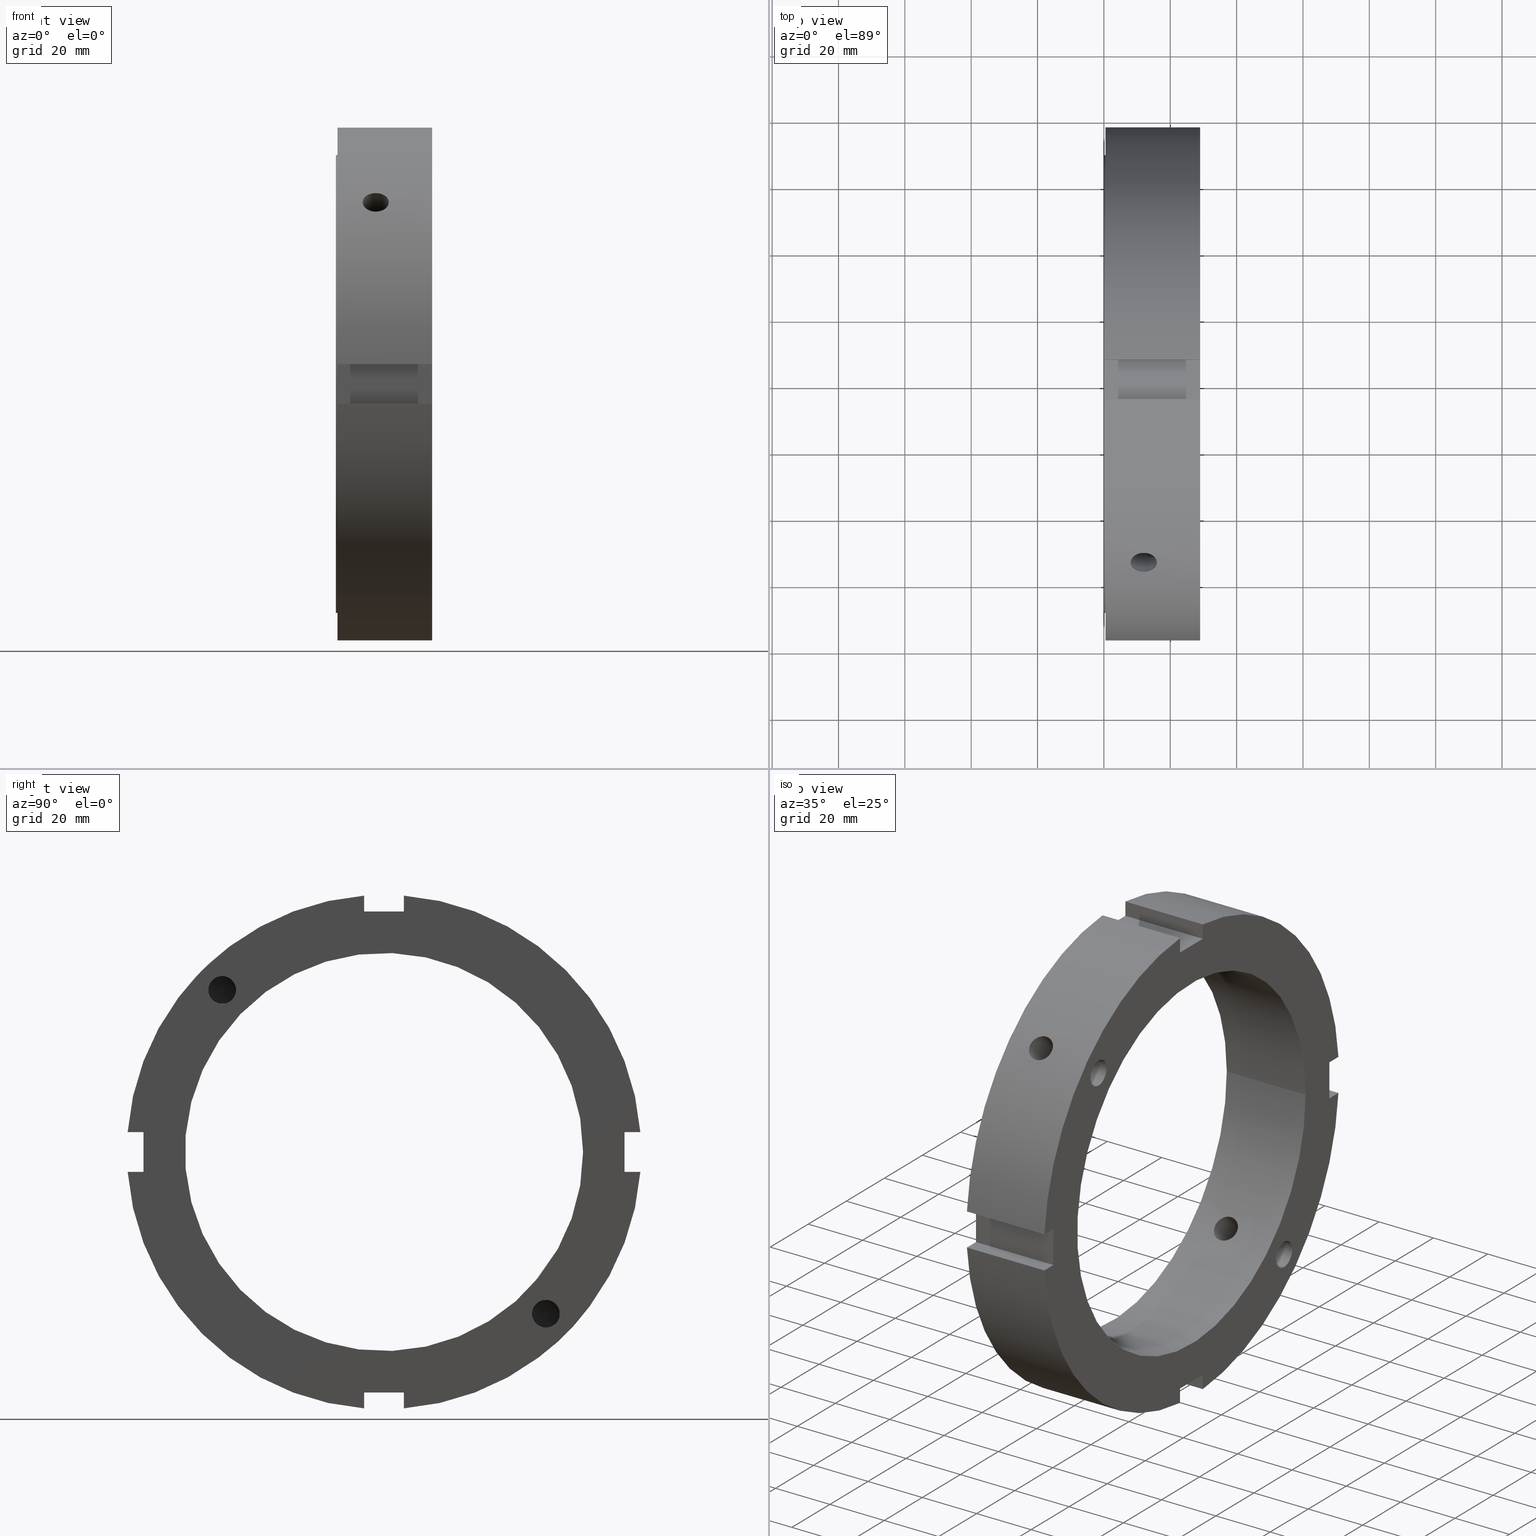
[diagram: canonical four-view strip — front | top / right | iso, engineering-drawing reading convention]
A machine part, canonical four-view strip (front | top / right | iso — engineering-drawing reading convention). The complete STEP part file that produces these views, byte-faithful:
ISO-10303-21;
HEADER;
/****************************************************************
 * Generated by software with PDElib inside                    *
 * PDElib Version v51a, created Wed 11/30/2011                  *
 * ITI Transcendata (http://www.transcendata.com/)              *
 ****************************************************************/
FILE_DESCRIPTION((''),'2;1');
FILE_NAME('C:\\Users\\sugidesign\\Documents\\Fukuda\\3Ddata\\ZMVtype\\FKD ZMV120.stp','2014-02-21T21:47:04',('sugidesign'),(''),'Autodesk Inventor LT ','Autodesk Inventor LT ','');
FILE_SCHEMA(('CONFIG_CONTROL_DESIGN'));
ENDSEC;
DATA;
#5=APPLICATION_CONTEXT('configuration controlled 3D designs of mechanical parts and assemblies');
#6=APPLICATION_PROTOCOL_DEFINITION('International Standard','ap203_configuration_controlled_3d_design_of_mechanical_parts_and_assemblies_mim_lf',2004,#5);
#7=PRODUCT_CONTEXT('',#5,'mechanical');
#8=PRODUCT('FKD ZMV120','FKD ZMV120',$,(#7));
#9=PRODUCT_RELATED_PRODUCT_CATEGORY('part',$,(#8));
#10=PRODUCT_DEFINITION_FORMATION('',$,#8);
#11=PRODUCT_DEFINITION_CONTEXT('part definition',#5,'design');
#12=PRODUCT_DEFINITION('',$,#10,#11);
#18=(NAMED_UNIT(*)PLANE_ANGLE_UNIT()SI_UNIT($,.RADIAN.));
#19=DIMENSIONAL_EXPONENTS(0.0,0.0,0.0,0.0,0.0,0.0,0.0);
#20=PLANE_ANGLE_MEASURE_WITH_UNIT(PLANE_ANGLE_MEASURE(0.0174532925),#18);
#24=(CONVERSION_BASED_UNIT('DEGREE',#20)NAMED_UNIT(#19)PLANE_ANGLE_UNIT());
#28=(NAMED_UNIT(*)SI_UNIT($,.STERADIAN.)SOLID_ANGLE_UNIT());
#32=(LENGTH_UNIT()NAMED_UNIT(*)SI_UNIT(.MILLI.,.METRE.));
#34=UNCERTAINTY_MEASURE_WITH_UNIT(LENGTH_MEASURE(0.01),#32,'DISTANCE_ACCURACY_VALUE','');
#36=(GEOMETRIC_REPRESENTATION_CONTEXT(3)GLOBAL_UNCERTAINTY_ASSIGNED_CONTEXT((#34))GLOBAL_UNIT_ASSIGNED_CONTEXT((#24,#28,#32))REPRESENTATION_CONTEXT('None','None'));
#37=AXIS2_PLACEMENT_3D('',#38,#39,#40);
#38=CARTESIAN_POINT('',(0.0,0.0,0.0));
#39=DIRECTION('',(0.0,0.0,1.0));
#40=DIRECTION('',(1.0,0.0,0.0));
#41=SHAPE_REPRESENTATION('',(#37),#36);
#42=PRODUCT_DEFINITION_SHAPE('','',#12);
#43=SHAPE_DEFINITION_REPRESENTATION(#42,#41);
#49=(NAMED_UNIT(*)PLANE_ANGLE_UNIT()SI_UNIT($,.RADIAN.));
#50=DIMENSIONAL_EXPONENTS(0.0,0.0,0.0,0.0,0.0,0.0,0.0);
#51=PLANE_ANGLE_MEASURE_WITH_UNIT(PLANE_ANGLE_MEASURE(0.0174532925),#49);
#55=(CONVERSION_BASED_UNIT('DEGREE',#51)NAMED_UNIT(#50)PLANE_ANGLE_UNIT());
#59=(NAMED_UNIT(*)SI_UNIT($,.STERADIAN.)SOLID_ANGLE_UNIT());
#63=(LENGTH_UNIT()NAMED_UNIT(*)SI_UNIT(.MILLI.,.METRE.));
#65=UNCERTAINTY_MEASURE_WITH_UNIT(LENGTH_MEASURE(0.000001),#63,'DISTANCE_ACCURACY_VALUE','');
#67=(GEOMETRIC_REPRESENTATION_CONTEXT(3)GLOBAL_UNCERTAINTY_ASSIGNED_CONTEXT((#65))GLOBAL_UNIT_ASSIGNED_CONTEXT((#55,#59,#63))REPRESENTATION_CONTEXT('','3D'));
#68=CARTESIAN_POINT('',(20.999999999999986,-48.790367901871761,48.790367901871797));
#69=DIRECTION('',(-1.0,0.0,0.0));
#70=DIRECTION('',(0.0,-1.0,0.0));
#71=AXIS2_PLACEMENT_3D('',#68,#69,#70);
#72=CYLINDRICAL_SURFACE('',#71,4.188);
#73=CARTESIAN_POINT('',(28.999999999999986,-52.978367901871763,48.790367901871797));
#74=VERTEX_POINT('',#73);
#75=CARTESIAN_POINT('',(28.999999999999986,-48.790367901871761,48.790367901871797));
#76=DIRECTION('',(-1.0,0.0,0.0));
#77=DIRECTION('',(0.0,-1.0,0.0));
#78=AXIS2_PLACEMENT_3D('',#75,#76,#77);
#79=CIRCLE('',#78,4.188);
#80=EDGE_CURVE('',#74,#74,#79,.T.);
#81=ORIENTED_EDGE('',*,*,#80,.F.);
#82=EDGE_LOOP('',(#81));
#83=FACE_OUTER_BOUND('',#82,.T.);
#84=CARTESIAN_POINT('',(12.999999999999986,-50.280665797738877,44.876500737343335));
#85=VERTEX_POINT('',#84);
#86=CARTESIAN_POINT('',(12.999999999999988,-44.876500737343285,50.280665797738848));
#87=VERTEX_POINT('',#86);
#88=CARTESIAN_POINT('',(12.999999999999964,-50.280665797738841,44.876500737343328));
#89=CARTESIAN_POINT('',(13.182626626901401,-50.171517709576449,44.834940009988919));
#90=CARTESIAN_POINT('',(13.359650843761129,-50.042833463403056,44.791295630297014));
#91=CARTESIAN_POINT('',(13.99755322760787,-49.518885851603258,44.647310866720503));
#92=CARTESIAN_POINT('',(14.431961554377928,-49.042663725761287,44.581976739132536));
#93=CARTESIAN_POINT('',(15.114248174209568,-48.128399976988405,44.632611981551264));
#94=CARTESIAN_POINT('',(15.41560135665021,-47.63439324830636,44.731450117752956));
#95=CARTESIAN_POINT('',(15.729475121457837,-46.914570388783964,45.036880835371377));
#96=CARTESIAN_POINT('',(15.811858442484654,-46.677737608791489,45.164224789491143));
#97=CARTESIAN_POINT('',(15.922144777571916,-46.229969107301734,45.46523953732293));
#98=CARTESIAN_POINT('',(15.949999999999989,-46.019052755093639,45.638956649431385));
#99=CARTESIAN_POINT('',(15.949999999999989,-45.63895664943135,46.019052755093675));
#100=CARTESIAN_POINT('',(15.922144777571908,-45.465239537322894,46.22996910730177));
#101=CARTESIAN_POINT('',(15.811858442484645,-45.164224789491108,46.677737608791517));
#102=CARTESIAN_POINT('',(15.729475121457831,-45.036880835371342,46.914570388783986));
#103=CARTESIAN_POINT('',(15.415601356650209,-44.731450117752935,47.634393248306367));
#104=CARTESIAN_POINT('',(15.114248174209564,-44.632611981551229,48.128399976988405));
#105=CARTESIAN_POINT('',(14.431961554377914,-44.5819767391325,49.042663725761287));
#106=CARTESIAN_POINT('',(13.997553227607831,-44.647310866720446,49.518885851603251));
#107=CARTESIAN_POINT('',(13.359650843761095,-44.791295630296943,50.042833463403042));
#108=CARTESIAN_POINT('',(13.182626626901419,-44.834940009988884,50.171517709576477));
#109=CARTESIAN_POINT('',(12.999999999999996,-44.876500737343285,50.280665797738862));
#110=B_SPLINE_CURVE_WITH_KNOTS('',3,(#88,#89,#90,#91,#92,#93,#94,#95,#96,#97,#98,#99,#100,#101,#102,#103,#104,#105,#106,#107,#108,#109),.UNSPECIFIED.,.F.,.U.,(4,2,2,2,2,2,2,2,2,2,4),(0.113466216021184,0.181311710729587,0.362623421459174,0.523884541749022,0.604515101893946,0.68514566203887,0.765776222183794,0.846406782328717,1.007667902618564,1.188979613348152,1.25682510805655),.UNSPECIFIED.);
#111=EDGE_CURVE('',#85,#87,#110,.T.);
#112=ORIENTED_EDGE('',*,*,#111,.F.);
#113=CARTESIAN_POINT('',(12.999999999999982,-52.704235066400223,47.300070006004695));
#114=VERTEX_POINT('',#113);
#115=CARTESIAN_POINT('',(12.999999999999986,-48.790367901871761,48.790367901871797));
#116=DIRECTION('',(-1.0,0.0,0.0));
#117=DIRECTION('',(0.0,-1.0,0.0));
#118=AXIS2_PLACEMENT_3D('',#115,#116,#117);
#119=CIRCLE('',#118,4.188);
#120=EDGE_CURVE('',#85,#114,#119,.T.);
#121=ORIENTED_EDGE('',*,*,#120,.T.);
#122=CARTESIAN_POINT('',(12.999999999999986,-47.300070006004702,52.70423506640028));
#123=VERTEX_POINT('',#122);
#124=CARTESIAN_POINT('',(12.999999999999991,-47.300070006004695,52.70423506640028));
#125=CARTESIAN_POINT('',(13.182626626901413,-47.40921809416708,52.745795793754681));
#126=CARTESIAN_POINT('',(13.359650843761081,-47.537902340340501,52.7894401734466));
#127=CARTESIAN_POINT('',(13.997553227607826,-48.061849952140292,52.933424937023105));
#128=CARTESIAN_POINT('',(14.431961554377919,-48.538072077982257,52.998759064611043));
#129=CARTESIAN_POINT('',(15.11424817420956,-49.452335826755139,52.948123822192315));
#130=CARTESIAN_POINT('',(15.415601356650203,-49.946342555437191,52.84928568599063));
#131=CARTESIAN_POINT('',(15.729475121457828,-50.666165414959572,52.543854968372223));
#132=CARTESIAN_POINT('',(15.811858442484652,-50.902998194952069,52.416511014252443));
#133=CARTESIAN_POINT('',(15.922144777571914,-51.350766696441809,52.115496266420671));
#134=CARTESIAN_POINT('',(15.949999999999989,-51.561683048649869,51.941779154312194));
#135=CARTESIAN_POINT('',(15.949999999999989,-51.941779154312158,51.561683048649904));
#136=CARTESIAN_POINT('',(15.922144777571919,-52.115496266420642,51.350766696441823));
#137=CARTESIAN_POINT('',(15.811858442484652,-52.416511014252421,50.902998194952076));
#138=CARTESIAN_POINT('',(15.729475121457837,-52.543854968372187,50.6661654149596));
#139=CARTESIAN_POINT('',(15.415601356650212,-52.849285685990608,49.946342555437212));
#140=CARTESIAN_POINT('',(15.114248174209568,-52.948123822192287,49.452335826755139));
#141=CARTESIAN_POINT('',(14.431961554377928,-52.998759064611008,48.538072077982257));
#142=CARTESIAN_POINT('',(13.99755322760786,-52.933424937023062,48.061849952140307));
#143=CARTESIAN_POINT('',(13.359650843761122,-52.789440173446565,47.537902340340509));
#144=CARTESIAN_POINT('',(13.182626626901401,-52.745795793754638,47.409218094167116));
#145=CARTESIAN_POINT('',(12.999999999999964,-52.70423506640023,47.300070006004724));
#146=B_SPLINE_CURVE_WITH_KNOTS('',3,(#124,#125,#126,#127,#128,#129,#130,#131,#132,#133,#134,#135,#136,#137,#138,#139,#140,#141,#142,#143,#144,#145),.UNSPECIFIED.,.F.,.U.,(4,2,2,2,2,2,2,2,2,2,4),(1.483757540098927,1.551603034807328,1.732914745536916,1.894175865826763,1.974806425971686,2.05543698611661,2.136067546261534,2.216698106406458,2.377959226696306,2.559270937425893,2.627116432134296),.UNSPECIFIED.);
#147=EDGE_CURVE('',#123,#114,#146,.T.);
#148=ORIENTED_EDGE('',*,*,#147,.F.);
#149=CARTESIAN_POINT('',(12.999999999999986,-48.790367901871761,48.790367901871797));
#150=DIRECTION('',(-1.0,0.0,0.0));
#151=DIRECTION('',(0.0,-1.0,0.0));
#152=AXIS2_PLACEMENT_3D('',#149,#150,#151);
#153=CIRCLE('',#152,4.188);
#154=EDGE_CURVE('',#123,#87,#153,.T.);
#155=ORIENTED_EDGE('',*,*,#154,.T.);
#156=EDGE_LOOP('',(#112,#121,#148,#155));
#157=FACE_BOUND('',#156,.T.);
#158=ADVANCED_FACE('',(#83,#157),#72,.F.);
#159=CARTESIAN_POINT('',(11.741797863756274,-48.790367901871761,48.790367901871797));
#160=DIRECTION('',(1.0,0.0,0.0));
#161=DIRECTION('',(0.0,-1.0,0.0));
#162=AXIS2_PLACEMENT_3D('',#159,#160,#161);
#163=CONICAL_SURFACE('',#162,2.094,59.000000000000007);
#164=CARTESIAN_POINT('',(12.999999999999979,-52.704235066400216,47.300070006004695));
#165=CARTESIAN_POINT('',(12.875270423222799,-52.317137235255863,46.866811639279639));
#166=CARTESIAN_POINT('',(12.806941641477303,-51.91033075161215,46.441995504528336));
#167=CARTESIAN_POINT('',(12.806941641477303,-51.524535525413675,46.056200278329868));
#168=CARTESIAN_POINT('',(12.806941641477305,-51.134023219396916,45.665687972313108));
#169=CARTESIAN_POINT('',(12.87528680072672,-50.713867275867159,45.263547740958181));
#170=CARTESIAN_POINT('',(12.99999999999998,-50.280665797738862,44.876500737343349));
#171=B_SPLINE_CURVE_WITH_KNOTS('',3,(#164,#165,#166,#167,#168,#169,#170),.UNSPECIFIED.,.F.,.U.,(4,3,4),(-0.163679052356606,0.0,0.165680339832748),.UNSPECIFIED.);
#172=EDGE_CURVE('',#114,#85,#171,.T.);
#173=ORIENTED_EDGE('',*,*,#172,.F.);
#174=ORIENTED_EDGE('',*,*,#120,.F.);
#175=EDGE_LOOP('',(#173,#174));
#176=FACE_OUTER_BOUND('',#175,.T.);
#177=ADVANCED_FACE('',(#176),#163,.F.);
#178=CARTESIAN_POINT('',(11.741797863756274,-48.790367901871761,48.790367901871797));
#179=DIRECTION('',(1.0,0.0,0.0));
#180=DIRECTION('',(0.0,-1.0,0.0));
#181=AXIS2_PLACEMENT_3D('',#178,#179,#180);
#182=CONICAL_SURFACE('',#181,2.094,59.000000000000007);
#183=CARTESIAN_POINT('',(12.999999999999988,-44.876500737343278,50.280665797738855));
#184=CARTESIAN_POINT('',(12.875286800726718,-45.263547740958131,50.713867275867166));
#185=CARTESIAN_POINT('',(12.806941641477291,-45.665687972313052,51.134023219396951));
#186=CARTESIAN_POINT('',(12.806941641477291,-46.441995504528322,51.910330751612221));
#187=CARTESIAN_POINT('',(12.875270423222805,-46.866811639279632,52.317137235255913));
#188=CARTESIAN_POINT('',(12.999999999999988,-47.300070006004695,52.70423506640028));
#189=B_SPLINE_CURVE_WITH_KNOTS('',3,(#183,#184,#185,#186,#187,#188),.UNSPECIFIED.,.F.,.U.,(4,2,4),(1.971982271476838,2.137662611309594,2.301341663666206),.UNSPECIFIED.);
#190=EDGE_CURVE('',#87,#123,#189,.T.);
#191=ORIENTED_EDGE('',*,*,#190,.F.);
#192=ORIENTED_EDGE('',*,*,#154,.F.);
#193=EDGE_LOOP('',(#191,#192));
#194=FACE_OUTER_BOUND('',#193,.T.);
#195=ADVANCED_FACE('',(#194),#182,.F.);
#196=CARTESIAN_POINT('',(11.999999999999989,-155.88938385919676,155.88938385919681));
#197=DIRECTION('',(0.0,-0.707106781186547,0.707106781186548));
#198=DIRECTION('',(1.0,0.0,0.0));
#199=AXIS2_PLACEMENT_3D('',#196,#197,#198);
#200=CYLINDRICAL_SURFACE('',#199,3.95);
#201=CARTESIAN_POINT('',(11.999999999999989,-57.522622761370918,51.9364791899972));
#202=VERTEX_POINT('',#201);
#203=CARTESIAN_POINT('',(11.999999999999986,-57.522622761370897,51.936479189997215));
#204=CARTESIAN_POINT('',(11.50393694114201,-57.522622761370897,51.936479189997215));
#205=CARTESIAN_POINT('',(10.974867623706766,-57.456228106413448,52.01031217263116));
#206=CARTESIAN_POINT('',(10.001694682891342,-57.184603746029282,52.308812019340252));
#207=CARTESIAN_POINT('',(9.557583774859204,-56.979183892343869,52.533282042898115));
#208=CARTESIAN_POINT('',(8.856272733751965,-56.501165837504018,53.047067573834113));
#209=CARTESIAN_POINT('',(8.55229462653338,-56.196651661537125,53.370621118761186));
#210=CARTESIAN_POINT('',(8.149155881657666,-55.521939788238285,54.072183779836678));
#211=CARTESIAN_POINT('',(8.049999999999987,-55.151545014761112,54.450006069153758));
#212=CARTESIAN_POINT('',(8.04999999999999,-54.450006069153716,55.151545014761155));
#213=CARTESIAN_POINT('',(8.149155881657675,-54.072183779836621,55.521939788238328));
#214=CARTESIAN_POINT('',(8.552294626533389,-53.37062111876115,56.196651661537167));
#215=CARTESIAN_POINT('',(8.856272733751968,-53.04706757383407,56.501165837504061));
#216=CARTESIAN_POINT('',(9.557583774859207,-52.533282042898072,56.979183892343919));
#217=CARTESIAN_POINT('',(10.001694682891355,-52.308812019340216,57.184603746029325));
#218=CARTESIAN_POINT('',(10.974867623706777,-52.010312172631131,57.456228106413491));
#219=CARTESIAN_POINT('',(11.503936941142015,-51.936479189997172,57.522622761370947));
#220=CARTESIAN_POINT('',(12.496063058857965,-51.936479189997172,57.522622761370947));
#221=CARTESIAN_POINT('',(13.025132376293199,-52.010312172631131,57.456228106413477));
#222=CARTESIAN_POINT('',(13.998305317108619,-52.308812019340216,57.18460374602931));
#223=CARTESIAN_POINT('',(14.442416225140773,-52.533282042898072,56.979183892343919));
#224=CARTESIAN_POINT('',(15.143727266248012,-53.04706757383407,56.501165837504061));
#225=CARTESIAN_POINT('',(15.44770537346659,-53.370621118761143,56.196651661537175));
#226=CARTESIAN_POINT('',(15.850844118342305,-54.072183779836614,55.521939788238335));
#227=CARTESIAN_POINT('',(15.949999999999989,-54.450006069153716,55.151545014761155));
#228=CARTESIAN_POINT('',(15.949999999999989,-55.151545014761112,54.450006069153758));
#229=CARTESIAN_POINT('',(15.850844118342307,-55.521939788238285,54.072183779836685));
#230=CARTESIAN_POINT('',(15.447705373466592,-56.196651661537125,53.370621118761207));
#231=CARTESIAN_POINT('',(15.143727266248014,-56.501165837504018,53.047067573834113));
#232=CARTESIAN_POINT('',(14.442416225140775,-56.979183892343869,52.533282042898115));
#233=CARTESIAN_POINT('',(13.998305317108635,-57.184603746029282,52.308812019340252));
#234=CARTESIAN_POINT('',(13.025132376293211,-57.456228106413448,52.01031217263116));
#235=CARTESIAN_POINT('',(12.496063058857967,-57.522622761370911,51.936479189997215));
#236=CARTESIAN_POINT('',(11.999999999999989,-57.522622761370911,51.936479189997215));
#237=B_SPLINE_CURVE_WITH_KNOTS('',3,(#203,#204,#205,#206,#207,#208,#209,#210,#211,#212,#213,#214,#215,#216,#217,#218,#219,#220,#221,#222,#223,#224,#225,#226,#227,#228,#229,#230,#231,#232,#233,#234,#235,#236),.UNSPECIFIED.,.T.,.U.,(4,2,2,2,2,2,2,2,2,2,2,2,2,2,2,2,4),(0.0,0.148818917657393,0.297637835314786,0.44645671902642,0.595275602738055,0.744094486449689,0.892913370161323,1.041732287818716,1.190551205476109,1.339370123133501,1.488189040790894,1.637007924502528,1.785826808214163,1.934645691925797,2.083464575637431,2.232283493294824,2.381102410952217),.UNSPECIFIED.);
#238=EDGE_CURVE('',#202,#202,#237,.T.);
#239=ORIENTED_EDGE('',*,*,#238,.F.);
#240=EDGE_LOOP('',(#239));
#241=FACE_OUTER_BOUND('',#240,.T.);
#242=ORIENTED_EDGE('',*,*,#172,.T.);
#243=ORIENTED_EDGE('',*,*,#111,.T.);
#244=ORIENTED_EDGE('',*,*,#190,.T.);
#245=ORIENTED_EDGE('',*,*,#147,.T.);
#246=EDGE_LOOP('',(#242,#243,#244,#245));
#247=FACE_BOUND('',#246,.T.);
#248=CARTESIAN_POINT('',(11.999999999999989,-45.127440211352543,39.541296639978832));
#249=VERTEX_POINT('',#248);
#250=CARTESIAN_POINT('',(11.999999999999989,-45.127440211352535,39.541296639978839));
#251=CARTESIAN_POINT('',(12.496124904619874,-45.127440211352535,39.541296639978839));
#252=CARTESIAN_POINT('',(13.025220777032892,-45.062118791753718,39.616237008436613));
#253=CARTESIAN_POINT('',(13.998376636610645,-44.794414653127788,39.918682349471162));
#254=CARTESIAN_POINT('',(14.44244881339908,-44.591786650026023,40.14593088733713));
#255=CARTESIAN_POINT('',(15.143694534990054,-44.119038767636752,40.664894214977934));
#256=CARTESIAN_POINT('',(15.447663323002736,-43.81733086790021,40.991199351325776));
#257=CARTESIAN_POINT('',(15.850820023005012,-43.146549486839305,41.696668644206376));
#258=CARTESIAN_POINT('',(15.949999999999989,-42.777219932459474,42.075593809926218));
#259=CARTESIAN_POINT('',(15.949999999999989,-42.07559380992619,42.777219932459531));
#260=CARTESIAN_POINT('',(15.850820023005003,-41.696668644206333,43.146549486839341));
#261=CARTESIAN_POINT('',(15.44766332300272,-40.991199351325719,43.817330867900253));
#262=CARTESIAN_POINT('',(15.143694534990054,-40.664894214977892,44.119038767636809));
#263=CARTESIAN_POINT('',(14.44244881339908,-40.145930887337087,44.591786650026052));
#264=CARTESIAN_POINT('',(13.998376636610644,-39.918682349471119,44.794414653127816));
#265=CARTESIAN_POINT('',(13.02522077703289,-39.616237008436578,45.062118791753747));
#266=CARTESIAN_POINT('',(12.496124904619874,-39.54129663997881,45.127440211352578));
#267=CARTESIAN_POINT('',(11.503875095380105,-39.54129663997881,45.127440211352578));
#268=CARTESIAN_POINT('',(10.974779222967094,-39.616237008436578,45.062118791753747));
#269=CARTESIAN_POINT('',(10.00162336338934,-39.918682349471119,44.794414653127816));
#270=CARTESIAN_POINT('',(9.557551186600897,-40.145930887337087,44.591786650026052));
#271=CARTESIAN_POINT('',(8.856305465009921,-40.664894214977892,44.119038767636809));
#272=CARTESIAN_POINT('',(8.552336676997255,-40.991199351325719,43.817330867900253));
#273=CARTESIAN_POINT('',(8.149179976994972,-41.696668644206333,43.146549486839341));
#274=CARTESIAN_POINT('',(8.049999999999988,-42.07559380992619,42.777219932459531));
#275=CARTESIAN_POINT('',(8.049999999999988,-42.777219932459474,42.075593809926218));
#276=CARTESIAN_POINT('',(8.149179976994965,-43.146549486839305,41.696668644206376));
#277=CARTESIAN_POINT('',(8.552336676997241,-43.81733086790021,40.991199351325776));
#278=CARTESIAN_POINT('',(8.856305465009926,-44.119038767636752,40.664894214977934));
#279=CARTESIAN_POINT('',(9.557551186600898,-44.591786650026023,40.14593088733713));
#280=CARTESIAN_POINT('',(10.001623363389335,-44.794414653127788,39.918682349471162));
#281=CARTESIAN_POINT('',(10.97477922296709,-45.062118791753718,39.616237008436613));
#282=CARTESIAN_POINT('',(11.503875095380103,-45.127440211352535,39.541296639978839));
#283=CARTESIAN_POINT('',(11.999999999999989,-45.127440211352535,39.541296639978839));
#284=B_SPLINE_CURVE_WITH_KNOTS('',3,(#250,#251,#252,#253,#254,#255,#256,#257,#258,#259,#260,#261,#262,#263,#264,#265,#266,#267,#268,#269,#270,#271,#272,#273,#274,#275,#276,#277,#278,#279,#280,#281,#282,#283),.UNSPECIFIED.,.T.,.U.,(4,2,2,2,2,2,2,2,2,2,2,2,2,2,2,2,4),(0.0,0.148837471385965,0.297674942771931,0.446512319502207,0.595349696232482,0.744187072962758,0.893024449693034,1.041861921078999,1.190699392464964,1.339536863850929,1.488374335236895,1.63721171196717,1.786049088697446,1.934886465427722,2.083723842157998,2.232561313543963,2.381398784929928),.UNSPECIFIED.);
#285=EDGE_CURVE('',#249,#249,#284,.T.);
#286=ORIENTED_EDGE('',*,*,#285,.F.);
#287=EDGE_LOOP('',(#286));
#288=FACE_BOUND('',#287,.T.);
#289=ADVANCED_FACE('',(#241,#247,#288),#200,.F.);
#290=CARTESIAN_POINT('',(11.741797863756274,48.79036790187179,-48.790367901871775));
#291=DIRECTION('',(1.0,0.0,0.0));
#292=DIRECTION('',(0.0,0.0,-1.0));
#293=AXIS2_PLACEMENT_3D('',#290,#291,#292);
#294=CONICAL_SURFACE('',#293,2.094,59.000000000000007);
#295=CARTESIAN_POINT('',(12.999999999999986,44.876500737343328,-50.280665797738884));
#296=VERTEX_POINT('',#295);
#297=CARTESIAN_POINT('',(12.999999999999982,47.300070006004688,-52.70423506640023));
#298=VERTEX_POINT('',#297);
#299=CARTESIAN_POINT('',(12.99999999999998,44.876500737343328,-50.280665797738884));
#300=CARTESIAN_POINT('',(12.875286802238479,45.263547736266425,-50.71386727061595));
#301=CARTESIAN_POINT('',(12.806941641477305,45.6656879751676,-51.134023222251429));
#302=CARTESIAN_POINT('',(12.806941641477303,46.056200278329854,-51.524535525413683));
#303=CARTESIAN_POINT('',(12.806941641477302,46.441995504528336,-51.910330751612157));
#304=CARTESIAN_POINT('',(12.875270423222801,46.866811639279618,-52.317137235255871));
#305=CARTESIAN_POINT('',(12.999999999999982,47.300070006004688,-52.70423506640023));
#306=B_SPLINE_CURVE_WITH_KNOTS('',3,(#299,#300,#301,#302,#303,#304,#305),.UNSPECIFIED.,.F.,.U.,(4,3,4),(-0.165680338621684,0.0,0.163679052356606),.UNSPECIFIED.);
#307=EDGE_CURVE('',#296,#298,#306,.T.);
#308=ORIENTED_EDGE('',*,*,#307,.F.);
#309=CARTESIAN_POINT('',(12.999999999999986,48.79036790187179,-48.790367901871775));
#310=DIRECTION('',(1.0,0.0,0.0));
#311=DIRECTION('',(0.0,0.0,-1.0));
#312=AXIS2_PLACEMENT_3D('',#309,#310,#311);
#313=CIRCLE('',#312,4.188);
#314=EDGE_CURVE('',#296,#298,#313,.T.);
#315=ORIENTED_EDGE('',*,*,#314,.T.);
#316=EDGE_LOOP('',(#308,#315));
#317=FACE_OUTER_BOUND('',#316,.T.);
#318=ADVANCED_FACE('',(#317),#294,.F.);
#319=CARTESIAN_POINT('',(11.741797863756274,48.79036790187179,-48.790367901871775));
#320=DIRECTION('',(1.0,0.0,0.0));
#321=DIRECTION('',(0.0,0.0,-1.0));
#322=AXIS2_PLACEMENT_3D('',#319,#320,#321);
#323=CONICAL_SURFACE('',#322,2.094,59.000000000000007);
#324=CARTESIAN_POINT('',(12.999999999999986,52.704235066400273,-47.300070006004717));
#325=VERTEX_POINT('',#324);
#326=CARTESIAN_POINT('',(12.999999999999988,50.280665797738841,-44.876500737343292));
#327=VERTEX_POINT('',#326);
#328=CARTESIAN_POINT('',(12.99999999999998,52.704235066400273,-47.300070006004717));
#329=CARTESIAN_POINT('',(12.875270423222789,52.317137235255878,-46.866811639279618));
#330=CARTESIAN_POINT('',(12.806941641477291,51.910330751612207,-46.441995504528322));
#331=CARTESIAN_POINT('',(12.806941641477289,51.134023219396951,-45.665687972313066));
#332=CARTESIAN_POINT('',(12.875286800726709,50.713867275867166,-45.26354774095816));
#333=CARTESIAN_POINT('',(12.999999999999986,50.280665797738841,-44.876500737343292));
#334=B_SPLINE_CURVE_WITH_KNOTS('',3,(#328,#329,#330,#331,#332,#333),.UNSPECIFIED.,.F.,.U.,(4,2,4),(1.954059084868041,2.117738137224651,2.283418477057402),.UNSPECIFIED.);
#335=EDGE_CURVE('',#325,#327,#334,.T.);
#336=ORIENTED_EDGE('',*,*,#335,.F.);
#337=CARTESIAN_POINT('',(12.999999999999986,48.79036790187179,-48.790367901871775));
#338=DIRECTION('',(1.0,0.0,0.0));
#339=DIRECTION('',(0.0,0.0,-1.0));
#340=AXIS2_PLACEMENT_3D('',#337,#338,#339);
#341=CIRCLE('',#340,4.188);
#342=EDGE_CURVE('',#325,#327,#341,.T.);
#343=ORIENTED_EDGE('',*,*,#342,.T.);
#344=EDGE_LOOP('',(#336,#343));
#345=FACE_OUTER_BOUND('',#344,.T.);
#346=ADVANCED_FACE('',(#345),#323,.F.);
#347=CARTESIAN_POINT('',(20.999999999999986,48.79036790187179,-48.790367901871775));
#348=DIRECTION('',(1.0,0.0,0.0));
#349=DIRECTION('',(0.0,0.0,-1.0));
#350=AXIS2_PLACEMENT_3D('',#347,#348,#349);
#351=CYLINDRICAL_SURFACE('',#350,4.188);
#352=CARTESIAN_POINT('',(12.999999999999982,47.300070006004695,-52.70423506640023));
#353=CARTESIAN_POINT('',(13.182626626900866,47.409218094166761,-52.745795793754517));
#354=CARTESIAN_POINT('',(13.359650843760837,47.537902340340267,-52.789440173446508));
#355=CARTESIAN_POINT('',(13.99755322760784,48.061849952140285,-52.933424937023084));
#356=CARTESIAN_POINT('',(14.431961554377928,48.53807207798225,-52.998759064611022));
#357=CARTESIAN_POINT('',(15.114248174209568,49.452335826755132,-52.948123822192301));
#358=CARTESIAN_POINT('',(15.415601356650214,49.946342555437198,-52.849285685990623));
#359=CARTESIAN_POINT('',(15.729475121457842,50.666165414959593,-52.543854968372194));
#360=CARTESIAN_POINT('',(15.811858442484654,50.902998194952083,-52.416511014252421));
#361=CARTESIAN_POINT('',(15.922144777571914,51.350766696441838,-52.115496266420642));
#362=CARTESIAN_POINT('',(15.949999999999989,51.561683048649897,-51.941779154312172));
#363=CARTESIAN_POINT('',(15.949999999999989,51.941779154312187,-51.561683048649876));
#364=CARTESIAN_POINT('',(15.922144777571914,52.115496266420664,-51.350766696441816));
#365=CARTESIAN_POINT('',(15.811858442484652,52.416511014252436,-50.902998194952076));
#366=CARTESIAN_POINT('',(15.729475121457828,52.543854968372216,-50.666165414959579));
#367=CARTESIAN_POINT('',(15.415601356650203,52.849285685990623,-49.946342555437198));
#368=CARTESIAN_POINT('',(15.11424817420956,52.948123822192308,-49.452335826755146));
#369=CARTESIAN_POINT('',(14.431961554377921,52.998759064611036,-48.538072077982264));
#370=CARTESIAN_POINT('',(13.997553227607831,52.933424937023091,-48.061849952140307));
#371=CARTESIAN_POINT('',(13.359650843760825,52.789440173446529,-47.537902340340295));
#372=CARTESIAN_POINT('',(13.182626626900847,52.745795793754546,-47.409218094166789));
#373=CARTESIAN_POINT('',(12.999999999999975,52.704235066400273,-47.300070006004731));
#374=B_SPLINE_CURVE_WITH_KNOTS('',3,(#352,#353,#354,#355,#356,#357,#358,#359,#360,#361,#362,#363,#364,#365,#366,#367,#368,#369,#370,#371,#372,#373),.UNSPECIFIED.,.F.,.U.,(4,2,2,2,2,2,2,2,2,2,4),(0.113466216021083,0.181311710729587,0.362623421459174,0.523884541749022,0.604515101893946,0.68514566203887,0.765776222183793,0.846406782328717,1.007667902618563,1.188979613348151,1.256825108056654),.UNSPECIFIED.);
#375=EDGE_CURVE('',#298,#325,#374,.T.);
#376=ORIENTED_EDGE('',*,*,#375,.F.);
#377=ORIENTED_EDGE('',*,*,#314,.F.);
#378=CARTESIAN_POINT('',(12.999999999999979,50.280665797738841,-44.876500737343285));
#379=CARTESIAN_POINT('',(13.182626626900856,50.171517709576783,-44.834940009989012));
#380=CARTESIAN_POINT('',(13.359650843760832,50.042833463403255,-44.791295630297014));
#381=CARTESIAN_POINT('',(13.997553227607831,49.518885851603244,-44.647310866720453));
#382=CARTESIAN_POINT('',(14.431961554377919,49.04266372576128,-44.581976739132507));
#383=CARTESIAN_POINT('',(15.114248174209566,48.128399976988391,-44.632611981551236));
#384=CARTESIAN_POINT('',(15.415601356650209,47.63439324830636,-44.731450117752942));
#385=CARTESIAN_POINT('',(15.729475121457831,46.914570388783979,-45.036880835371349));
#386=CARTESIAN_POINT('',(15.811858442484645,46.67773760879151,-45.164224789491115));
#387=CARTESIAN_POINT('',(15.922144777571908,46.229969107301763,-45.465239537322901));
#388=CARTESIAN_POINT('',(15.949999999999989,46.019052755093668,-45.638956649431357));
#389=CARTESIAN_POINT('',(15.949999999999989,45.638956649431378,-46.019052755093654));
#390=CARTESIAN_POINT('',(15.922144777571916,45.465239537322915,-46.229969107301741));
#391=CARTESIAN_POINT('',(15.811858442484654,45.164224789491136,-46.677737608791496));
#392=CARTESIAN_POINT('',(15.729475121457837,45.036880835371363,-46.914570388783972));
#393=CARTESIAN_POINT('',(15.41560135665021,44.731450117752949,-47.634393248306367));
#394=CARTESIAN_POINT('',(15.114248174209566,44.63261198155125,-48.128399976988412));
#395=CARTESIAN_POINT('',(14.431961554377928,44.581976739132536,-49.042663725761301));
#396=CARTESIAN_POINT('',(13.997553227607845,44.647310866720488,-49.518885851603272));
#397=CARTESIAN_POINT('',(13.359650843760848,44.791295630297057,-50.042833463403291));
#398=CARTESIAN_POINT('',(13.182626626900866,44.834940009989033,-50.171517709576811));
#399=CARTESIAN_POINT('',(12.999999999999982,44.876500737343321,-50.280665797738877));
#400=B_SPLINE_CURVE_WITH_KNOTS('',3,(#378,#379,#380,#381,#382,#383,#384,#385,#386,#387,#388,#389,#390,#391,#392,#393,#394,#395,#396,#397,#398,#399),.UNSPECIFIED.,.F.,.U.,(4,2,2,2,2,2,2,2,2,2,4),(1.483757540098827,1.551603034807328,1.732914745536917,1.894175865826763,1.974806425971687,2.05543698611661,2.136067546261534,2.216698106406458,2.377959226696306,2.559270937425893,2.627116432134397),.UNSPECIFIED.);
#401=EDGE_CURVE('',#327,#296,#400,.T.);
#402=ORIENTED_EDGE('',*,*,#401,.F.);
#403=ORIENTED_EDGE('',*,*,#342,.F.);
#404=EDGE_LOOP('',(#376,#377,#402,#403));
#405=FACE_OUTER_BOUND('',#404,.T.);
#406=CARTESIAN_POINT('',(28.999999999999986,48.79036790187179,-52.978367901871771));
#407=VERTEX_POINT('',#406);
#408=CARTESIAN_POINT('',(28.999999999999986,48.79036790187179,-48.790367901871775));
#409=DIRECTION('',(-1.0,0.0,0.0));
#410=DIRECTION('',(0.0,0.0,-1.0));
#411=AXIS2_PLACEMENT_3D('',#408,#409,#410);
#412=CIRCLE('',#411,4.188);
#413=EDGE_CURVE('',#407,#407,#412,.T.);
#414=ORIENTED_EDGE('',*,*,#413,.F.);
#415=EDGE_LOOP('',(#414));
#416=FACE_BOUND('',#415,.T.);
#417=ADVANCED_FACE('',(#405,#416),#351,.F.);
#418=CARTESIAN_POINT('',(11.999999999999989,155.88938385919678,-155.88938385919678));
#419=DIRECTION('',(0.0,-0.707106781186547,0.707106781186548));
#420=DIRECTION('',(1.0,0.0,0.0));
#421=AXIS2_PLACEMENT_3D('',#418,#419,#420);
#422=CYLINDRICAL_SURFACE('',#421,3.95);
#423=CARTESIAN_POINT('',(11.999999999999989,51.936479189997193,-57.522622761370926));
#424=VERTEX_POINT('',#423);
#425=CARTESIAN_POINT('',(11.999999999999986,51.936479189997193,-57.522622761370926));
#426=CARTESIAN_POINT('',(12.496063058857963,51.936479189997193,-57.522622761370926));
#427=CARTESIAN_POINT('',(13.025132376293204,52.010312172631146,-57.456228106413469));
#428=CARTESIAN_POINT('',(13.998305317108626,52.308812019340237,-57.184603746029303));
#429=CARTESIAN_POINT('',(14.442416225140773,52.533282042898087,-56.979183892343897));
#430=CARTESIAN_POINT('',(15.14372726624801,53.047067573834084,-56.50116583750404));
#431=CARTESIAN_POINT('',(15.44770537346659,53.370621118761164,-56.196651661537153));
#432=CARTESIAN_POINT('',(15.850844118342305,54.072183779836642,-55.521939788238306));
#433=CARTESIAN_POINT('',(15.949999999999989,54.45000606915373,-55.15154501476114));
#434=CARTESIAN_POINT('',(15.949999999999989,55.151545014761126,-54.450006069153744));
#435=CARTESIAN_POINT('',(15.850844118342307,55.521939788238299,-54.072183779836671));
#436=CARTESIAN_POINT('',(15.447705373466592,56.196651661537146,-53.370621118761186));
#437=CARTESIAN_POINT('',(15.143727266248014,56.501165837504033,-53.047067573834099));
#438=CARTESIAN_POINT('',(14.442416225140777,56.979183892343883,-52.533282042898094));
#439=CARTESIAN_POINT('',(13.998305317108635,57.184603746029303,-52.308812019340237));
#440=CARTESIAN_POINT('',(13.025132376293216,57.456228106413469,-52.010312172631146));
#441=CARTESIAN_POINT('',(12.496063058857965,57.522622761370911,-51.9364791899972));
#442=CARTESIAN_POINT('',(11.50393694114201,57.522622761370911,-51.9364791899972));
#443=CARTESIAN_POINT('',(10.974867623706764,57.456228106413462,-52.010312172631139));
#444=CARTESIAN_POINT('',(10.001694682891344,57.184603746029296,-52.308812019340223));
#445=CARTESIAN_POINT('',(9.557583774859202,56.979183892343883,-52.533282042898094));
#446=CARTESIAN_POINT('',(8.856272733751965,56.501165837504033,-53.047067573834099));
#447=CARTESIAN_POINT('',(8.552294626533382,56.196651661537146,-53.370621118761179));
#448=CARTESIAN_POINT('',(8.149155881657668,55.521939788238299,-54.072183779836671));
#449=CARTESIAN_POINT('',(8.049999999999987,55.151545014761126,-54.450006069153744));
#450=CARTESIAN_POINT('',(8.04999999999999,54.45000606915373,-55.15154501476114));
#451=CARTESIAN_POINT('',(8.149155881657675,54.072183779836642,-55.521939788238306));
#452=CARTESIAN_POINT('',(8.552294626533389,53.370621118761164,-56.196651661537153));
#453=CARTESIAN_POINT('',(8.856272733751968,53.047067573834084,-56.50116583750404));
#454=CARTESIAN_POINT('',(9.557583774859207,52.533282042898087,-56.979183892343897));
#455=CARTESIAN_POINT('',(10.001694682891353,52.308812019340237,-57.184603746029303));
#456=CARTESIAN_POINT('',(10.974867623706775,52.010312172631146,-57.456228106413469));
#457=CARTESIAN_POINT('',(11.503936941142015,51.936479189997193,-57.522622761370926));
#458=CARTESIAN_POINT('',(11.999999999999989,51.936479189997193,-57.522622761370926));
#459=B_SPLINE_CURVE_WITH_KNOTS('',3,(#425,#426,#427,#428,#429,#430,#431,#432,#433,#434,#435,#436,#437,#438,#439,#440,#441,#442,#443,#444,#445,#446,#447,#448,#449,#450,#451,#452,#453,#454,#455,#456,#457,#458),.UNSPECIFIED.,.T.,.U.,(4,2,2,2,2,2,2,2,2,2,2,2,2,2,2,2,4),(0.0,0.148818917657393,0.297637835314786,0.44645671902642,0.595275602738054,0.744094486449689,0.892913370161323,1.041732287818716,1.190551205476109,1.339370123133501,1.488189040790894,1.637007924502528,1.785826808214163,1.934645691925797,2.083464575637432,2.232283493294824,2.381102410952217),.UNSPECIFIED.);
#460=EDGE_CURVE('',#424,#424,#459,.T.);
#461=ORIENTED_EDGE('',*,*,#460,.F.);
#462=EDGE_LOOP('',(#461));
#463=FACE_OUTER_BOUND('',#462,.T.);
#464=ORIENTED_EDGE('',*,*,#307,.T.);
#465=ORIENTED_EDGE('',*,*,#375,.T.);
#466=ORIENTED_EDGE('',*,*,#335,.T.);
#467=ORIENTED_EDGE('',*,*,#401,.T.);
#468=EDGE_LOOP('',(#464,#465,#466,#467));
#469=FACE_BOUND('',#468,.T.);
#470=CARTESIAN_POINT('',(11.999999999999989,39.541296639978825,-45.12744021135255));
#471=VERTEX_POINT('',#470);
#472=CARTESIAN_POINT('',(11.999999999999989,39.541296639978825,-45.12744021135255));
#473=CARTESIAN_POINT('',(11.503875095380103,39.541296639978825,-45.12744021135255));
#474=CARTESIAN_POINT('',(10.974779222967094,39.616237008436592,-45.062118791753733));
#475=CARTESIAN_POINT('',(10.00162336338934,39.91868234947114,-44.794414653127802));
#476=CARTESIAN_POINT('',(9.557551186600897,40.145930887337109,-44.591786650026037));
#477=CARTESIAN_POINT('',(8.856305465009921,40.664894214977913,-44.119038767636795));
#478=CARTESIAN_POINT('',(8.552336676997255,40.99119935132574,-43.817330867900239));
#479=CARTESIAN_POINT('',(8.149179976994972,41.696668644206348,-43.146549486839319));
#480=CARTESIAN_POINT('',(8.049999999999988,42.075593809926204,-42.777219932459509));
#481=CARTESIAN_POINT('',(8.049999999999988,42.777219932459488,-42.075593809926204));
#482=CARTESIAN_POINT('',(8.149179976994967,43.146549486839319,-41.696668644206355));
#483=CARTESIAN_POINT('',(8.552336676997243,43.817330867900225,-40.991199351325761));
#484=CARTESIAN_POINT('',(8.856305465009925,44.119038767636773,-40.66489421497792));
#485=CARTESIAN_POINT('',(9.557551186600895,44.591786650026037,-40.145930887337116));
#486=CARTESIAN_POINT('',(10.001623363389331,44.794414653127788,-39.91868234947114));
#487=CARTESIAN_POINT('',(10.974779222967081,45.062118791753718,-39.616237008436592));
#488=CARTESIAN_POINT('',(11.503875095380103,45.127440211352543,-39.541296639978832));
#489=CARTESIAN_POINT('',(12.496124904619874,45.127440211352543,-39.541296639978832));
#490=CARTESIAN_POINT('',(13.025220777032896,45.062118791753718,-39.616237008436592));
#491=CARTESIAN_POINT('',(13.998376636610645,44.794414653127788,-39.91868234947114));
#492=CARTESIAN_POINT('',(14.442448813399086,44.591786650026037,-40.145930887337116));
#493=CARTESIAN_POINT('',(15.143694534990058,44.119038767636773,-40.66489421497792));
#494=CARTESIAN_POINT('',(15.447663323002738,43.817330867900218,-40.991199351325761));
#495=CARTESIAN_POINT('',(15.85082002300501,43.146549486839312,-41.696668644206355));
#496=CARTESIAN_POINT('',(15.949999999999989,42.777219932459488,-42.075593809926204));
#497=CARTESIAN_POINT('',(15.949999999999989,42.075593809926204,-42.777219932459509));
#498=CARTESIAN_POINT('',(15.850820023005003,41.696668644206348,-43.146549486839319));
#499=CARTESIAN_POINT('',(15.44766332300272,40.99119935132574,-43.817330867900239));
#500=CARTESIAN_POINT('',(15.143694534990054,40.664894214977913,-44.119038767636795));
#501=CARTESIAN_POINT('',(14.44244881339908,40.145930887337109,-44.591786650026037));
#502=CARTESIAN_POINT('',(13.998376636610637,39.91868234947114,-44.794414653127802));
#503=CARTESIAN_POINT('',(13.025220777032885,39.616237008436592,-45.062118791753733));
#504=CARTESIAN_POINT('',(12.496124904619872,39.541296639978825,-45.12744021135255));
#505=CARTESIAN_POINT('',(11.999999999999986,39.541296639978825,-45.12744021135255));
#506=B_SPLINE_CURVE_WITH_KNOTS('',3,(#472,#473,#474,#475,#476,#477,#478,#479,#480,#481,#482,#483,#484,#485,#486,#487,#488,#489,#490,#491,#492,#493,#494,#495,#496,#497,#498,#499,#500,#501,#502,#503,#504,#505),.UNSPECIFIED.,.T.,.U.,(4,2,2,2,2,2,2,2,2,2,2,2,2,2,2,2,4),(0.0,0.148837471385965,0.297674942771931,0.446512319502206,0.595349696232482,0.744187072962758,0.893024449693033,1.041861921078999,1.190699392464964,1.339536863850929,1.488374335236895,1.63721171196717,1.786049088697446,1.934886465427722,2.083723842157998,2.232561313543963,2.381398784929928),.UNSPECIFIED.);
#507=EDGE_CURVE('',#471,#471,#506,.T.);
#508=ORIENTED_EDGE('',*,*,#507,.F.);
#509=EDGE_LOOP('',(#508));
#510=FACE_BOUND('',#509,.T.);
#511=ADVANCED_FACE('',(#463,#469,#510),#422,.F.);
#512=CARTESIAN_POINT('',(28.999999999999986,-6.00000000000001,-72.5));
#513=DIRECTION('',(0.0,-1.0,0.0));
#514=DIRECTION('',(-1.0,0.0,0.0));
#515=AXIS2_PLACEMENT_3D('',#512,#513,#514);
#516=PLANE('',#515);
#517=CARTESIAN_POINT('',(0.49999999999998,-6.00000000000001,-72.5));
#518=VERTEX_POINT('',#517);
#519=CARTESIAN_POINT('',(0.49999999999998,-6.000000000000011,-77.26739286400182));
#520=VERTEX_POINT('',#519);
#521=CARTESIAN_POINT('',(0.49999999999998,-6.000000000000007,-72.5));
#522=DIRECTION('',(0.0,0.0,-1.0));
#523=VECTOR('',#522,4.76739286400182);
#524=LINE('',#521,#523);
#525=EDGE_CURVE('',#518,#520,#524,.T.);
#526=ORIENTED_EDGE('',*,*,#525,.F.);
#527=CARTESIAN_POINT('',(28.999999999999986,-6.00000000000001,-72.5));
#528=VERTEX_POINT('',#527);
#529=CARTESIAN_POINT('',(28.999999999999986,-6.00000000000001,-72.5));
#530=DIRECTION('',(-1.0,0.0,0.0));
#531=VECTOR('',#530,28.500000000000007);
#532=LINE('',#529,#531);
#533=EDGE_CURVE('',#528,#518,#532,.T.);
#534=ORIENTED_EDGE('',*,*,#533,.F.);
#535=CARTESIAN_POINT('',(28.999999999999986,-6.000000000000011,-77.26739286400182));
#536=VERTEX_POINT('',#535);
#537=CARTESIAN_POINT('',(28.999999999999986,-6.000000000000017,-77.26739286400182));
#538=DIRECTION('',(0.0,0.0,1.0));
#539=VECTOR('',#538,4.76739286400182);
#540=LINE('',#537,#539);
#541=EDGE_CURVE('',#536,#528,#540,.T.);
#542=ORIENTED_EDGE('',*,*,#541,.F.);
#543=CARTESIAN_POINT('',(0.49999999999998,-6.000000000000011,-77.26739286400182));
#544=DIRECTION('',(1.0,0.0,0.0));
#545=VECTOR('',#544,28.500000000000007);
#546=LINE('',#543,#545);
#547=EDGE_CURVE('',#520,#536,#546,.T.);
#548=ORIENTED_EDGE('',*,*,#547,.F.);
#549=EDGE_LOOP('',(#526,#534,#542,#548));
#550=FACE_OUTER_BOUND('',#549,.T.);
#551=ADVANCED_FACE('',(#550),#516,.F.);
#552=CARTESIAN_POINT('',(28.999999999999986,5.999999999999982,-77.5));
#553=DIRECTION('',(0.0,1.0,0.0));
#554=DIRECTION('',(1.0,0.0,0.0));
#555=AXIS2_PLACEMENT_3D('',#552,#553,#554);
#556=PLANE('',#555);
#557=CARTESIAN_POINT('',(0.49999999999998,5.999999999999982,-77.26739286400182));
#558=VERTEX_POINT('',#557);
#559=CARTESIAN_POINT('',(0.49999999999998,5.999999999999983,-72.5));
#560=VERTEX_POINT('',#559);
#561=CARTESIAN_POINT('',(0.49999999999998,5.999999999999981,-77.26739286400182));
#562=DIRECTION('',(0.0,0.0,1.0));
#563=VECTOR('',#562,4.76739286400182);
#564=LINE('',#561,#563);
#565=EDGE_CURVE('',#558,#560,#564,.T.);
#566=ORIENTED_EDGE('',*,*,#565,.F.);
#567=CARTESIAN_POINT('',(28.999999999999986,5.999999999999982,-77.26739286400182));
#568=VERTEX_POINT('',#567);
#569=CARTESIAN_POINT('',(28.999999999999986,5.999999999999982,-77.26739286400182));
#570=DIRECTION('',(-1.0,0.0,0.0));
#571=VECTOR('',#570,28.500000000000007);
#572=LINE('',#569,#571);
#573=EDGE_CURVE('',#568,#558,#572,.T.);
#574=ORIENTED_EDGE('',*,*,#573,.F.);
#575=CARTESIAN_POINT('',(28.999999999999986,5.999999999999983,-72.5));
#576=VERTEX_POINT('',#575);
#577=CARTESIAN_POINT('',(28.999999999999986,5.999999999999981,-72.5));
#578=DIRECTION('',(0.0,0.0,-1.0));
#579=VECTOR('',#578,4.76739286400182);
#580=LINE('',#577,#579);
#581=EDGE_CURVE('',#576,#568,#580,.T.);
#582=ORIENTED_EDGE('',*,*,#581,.F.);
#583=CARTESIAN_POINT('',(28.999999999999986,5.999999999999983,-72.5));
#584=DIRECTION('',(-1.0,0.0,0.0));
#585=VECTOR('',#584,28.500000000000007);
#586=LINE('',#583,#585);
#587=EDGE_CURVE('',#576,#560,#586,.T.);
#588=ORIENTED_EDGE('',*,*,#587,.T.);
#589=EDGE_LOOP('',(#566,#574,#582,#588));
#590=FACE_OUTER_BOUND('',#589,.T.);
#591=ADVANCED_FACE('',(#590),#556,.F.);
#592=CARTESIAN_POINT('',(28.999999999999986,5.999999999999983,-72.5));
#593=DIRECTION('',(0.0,0.0,1.0));
#594=DIRECTION('',(0.0,-1.0,0.0));
#595=AXIS2_PLACEMENT_3D('',#592,#593,#594);
#596=PLANE('',#595);
#597=CARTESIAN_POINT('',(0.49999999999998,5.999999999999986,-72.5));
#598=DIRECTION('',(0.0,-1.0,0.0));
#599=VECTOR('',#598,11.999999999999993);
#600=LINE('',#597,#599);
#601=EDGE_CURVE('',#560,#518,#600,.T.);
#602=ORIENTED_EDGE('',*,*,#601,.F.);
#603=ORIENTED_EDGE('',*,*,#587,.F.);
#604=CARTESIAN_POINT('',(28.999999999999986,-6.000000000000007,-72.499999999999986));
#605=DIRECTION('',(0.0,1.0,0.0));
#606=VECTOR('',#605,11.999999999999993);
#607=LINE('',#604,#606);
#608=EDGE_CURVE('',#528,#576,#607,.T.);
#609=ORIENTED_EDGE('',*,*,#608,.F.);
#610=ORIENTED_EDGE('',*,*,#533,.T.);
#611=EDGE_LOOP('',(#602,#603,#609,#610));
#612=FACE_OUTER_BOUND('',#611,.T.);
#613=ADVANCED_FACE('',(#612),#596,.F.);
#614=CARTESIAN_POINT('',(28.999999999999986,-72.5,6.000000000000005));
#615=DIRECTION('',(0.0,0.0,1.0));
#616=DIRECTION('',(-1.0,0.0,0.0));
#617=AXIS2_PLACEMENT_3D('',#614,#615,#616);
#618=PLANE('',#617);
#619=CARTESIAN_POINT('',(0.49999999999998,-72.5,6.000000000000005));
#620=VERTEX_POINT('',#619);
#621=CARTESIAN_POINT('',(0.49999999999998,-77.26739286400182,6.000000000000005));
#622=VERTEX_POINT('',#621);
#623=CARTESIAN_POINT('',(0.49999999999998,-72.5,6.000000000000005));
#624=DIRECTION('',(0.0,-1.0,0.0));
#625=VECTOR('',#624,4.76739286400182);
#626=LINE('',#623,#625);
#627=EDGE_CURVE('',#620,#622,#626,.T.);
#628=ORIENTED_EDGE('',*,*,#627,.F.);
#629=CARTESIAN_POINT('',(28.999999999999986,-72.5,6.000000000000005));
#630=VERTEX_POINT('',#629);
#631=CARTESIAN_POINT('',(28.999999999999986,-72.5,6.000000000000005));
#632=DIRECTION('',(-1.0,0.0,0.0));
#633=VECTOR('',#632,28.500000000000007);
#634=LINE('',#631,#633);
#635=EDGE_CURVE('',#630,#620,#634,.T.);
#636=ORIENTED_EDGE('',*,*,#635,.F.);
#637=CARTESIAN_POINT('',(28.999999999999986,-77.26739286400182,6.000000000000005));
#638=VERTEX_POINT('',#637);
#639=CARTESIAN_POINT('',(28.999999999999986,-77.26739286400182,6.000000000000005));
#640=DIRECTION('',(0.0,1.0,0.0));
#641=VECTOR('',#640,4.76739286400182);
#642=LINE('',#639,#641);
#643=EDGE_CURVE('',#638,#630,#642,.T.);
#644=ORIENTED_EDGE('',*,*,#643,.F.);
#645=CARTESIAN_POINT('',(0.49999999999998,-77.26739286400182,6.000000000000006));
#646=DIRECTION('',(1.0,0.0,0.0));
#647=VECTOR('',#646,28.500000000000007);
#648=LINE('',#645,#647);
#649=EDGE_CURVE('',#622,#638,#648,.T.);
#650=ORIENTED_EDGE('',*,*,#649,.F.);
#651=EDGE_LOOP('',(#628,#636,#644,#650));
#652=FACE_OUTER_BOUND('',#651,.T.);
#653=ADVANCED_FACE('',(#652),#618,.F.);
#654=CARTESIAN_POINT('',(28.999999999999986,-77.5,-5.999999999999988));
#655=DIRECTION('',(0.0,0.0,-1.0));
#656=DIRECTION('',(1.0,0.0,0.0));
#657=AXIS2_PLACEMENT_3D('',#654,#655,#656);
#658=PLANE('',#657);
#659=CARTESIAN_POINT('',(0.49999999999998,-77.26739286400182,-5.999999999999988));
#660=VERTEX_POINT('',#659);
#661=CARTESIAN_POINT('',(0.49999999999998,-72.5,-5.999999999999988));
#662=VERTEX_POINT('',#661);
#663=CARTESIAN_POINT('',(0.49999999999998,-77.26739286400182,-5.999999999999988));
#664=DIRECTION('',(0.0,1.0,0.0));
#665=VECTOR('',#664,4.76739286400182);
#666=LINE('',#663,#665);
#667=EDGE_CURVE('',#660,#662,#666,.T.);
#668=ORIENTED_EDGE('',*,*,#667,.F.);
#669=CARTESIAN_POINT('',(28.999999999999986,-77.26739286400182,-5.999999999999988));
#670=VERTEX_POINT('',#669);
#671=CARTESIAN_POINT('',(28.999999999999986,-77.26739286400182,-5.999999999999987));
#672=DIRECTION('',(-1.0,0.0,0.0));
#673=VECTOR('',#672,28.500000000000007);
#674=LINE('',#671,#673);
#675=EDGE_CURVE('',#670,#660,#674,.T.);
#676=ORIENTED_EDGE('',*,*,#675,.F.);
#677=CARTESIAN_POINT('',(28.999999999999986,-72.5,-5.999999999999988));
#678=VERTEX_POINT('',#677);
#679=CARTESIAN_POINT('',(28.999999999999986,-72.5,-5.999999999999989));
#680=DIRECTION('',(0.0,-1.0,0.0));
#681=VECTOR('',#680,4.76739286400182);
#682=LINE('',#679,#681);
#683=EDGE_CURVE('',#678,#670,#682,.T.);
#684=ORIENTED_EDGE('',*,*,#683,.F.);
#685=CARTESIAN_POINT('',(28.999999999999986,-72.5,-5.999999999999988));
#686=DIRECTION('',(-1.0,0.0,0.0));
#687=VECTOR('',#686,28.500000000000007);
#688=LINE('',#685,#687);
#689=EDGE_CURVE('',#678,#662,#688,.T.);
#690=ORIENTED_EDGE('',*,*,#689,.T.);
#691=EDGE_LOOP('',(#668,#676,#684,#690));
#692=FACE_OUTER_BOUND('',#691,.T.);
#693=ADVANCED_FACE('',(#692),#658,.F.);
#694=CARTESIAN_POINT('',(28.999999999999986,-72.5,-5.999999999999988));
#695=DIRECTION('',(0.0,1.0,0.0));
#696=DIRECTION('',(0.0,0.0,1.0));
#697=AXIS2_PLACEMENT_3D('',#694,#695,#696);
#698=PLANE('',#697);
#699=CARTESIAN_POINT('',(0.49999999999998,-72.5,-5.999999999999988));
#700=DIRECTION('',(0.0,0.0,1.0));
#701=VECTOR('',#700,11.999999999999993);
#702=LINE('',#699,#701);
#703=EDGE_CURVE('',#662,#620,#702,.T.);
#704=ORIENTED_EDGE('',*,*,#703,.F.);
#705=ORIENTED_EDGE('',*,*,#689,.F.);
#706=CARTESIAN_POINT('',(28.999999999999986,-72.5,6.000000000000004));
#707=DIRECTION('',(0.0,0.0,-1.0));
#708=VECTOR('',#707,11.999999999999993);
#709=LINE('',#706,#708);
#710=EDGE_CURVE('',#630,#678,#709,.T.);
#711=ORIENTED_EDGE('',*,*,#710,.F.);
#712=ORIENTED_EDGE('',*,*,#635,.T.);
#713=EDGE_LOOP('',(#704,#705,#711,#712));
#714=FACE_OUTER_BOUND('',#713,.T.);
#715=ADVANCED_FACE('',(#714),#698,.F.);
#716=CARTESIAN_POINT('',(28.999999999999986,6.000000000000001,72.5));
#717=DIRECTION('',(0.0,1.0,0.0));
#718=DIRECTION('',(-1.0,0.0,0.0));
#719=AXIS2_PLACEMENT_3D('',#716,#717,#718);
#720=PLANE('',#719);
#721=CARTESIAN_POINT('',(0.49999999999998,6.000000000000001,72.5));
#722=VERTEX_POINT('',#721);
#723=CARTESIAN_POINT('',(0.49999999999998,6.000000000000001,77.26739286400182));
#724=VERTEX_POINT('',#723);
#725=CARTESIAN_POINT('',(0.49999999999998,6.000000000000007,72.5));
#726=DIRECTION('',(0.0,0.0,1.0));
#727=VECTOR('',#726,4.76739286400182);
#728=LINE('',#725,#727);
#729=EDGE_CURVE('',#722,#724,#728,.T.);
#730=ORIENTED_EDGE('',*,*,#729,.F.);
#731=CARTESIAN_POINT('',(28.999999999999986,6.000000000000001,72.5));
#732=VERTEX_POINT('',#731);
#733=CARTESIAN_POINT('',(28.999999999999986,6.000000000000001,72.5));
#734=DIRECTION('',(-1.0,0.0,0.0));
#735=VECTOR('',#734,28.500000000000007);
#736=LINE('',#733,#735);
#737=EDGE_CURVE('',#732,#722,#736,.T.);
#738=ORIENTED_EDGE('',*,*,#737,.F.);
#739=CARTESIAN_POINT('',(28.999999999999986,6.000000000000001,77.26739286400182));
#740=VERTEX_POINT('',#739);
#741=CARTESIAN_POINT('',(28.999999999999986,5.999999999999999,77.26739286400182));
#742=DIRECTION('',(0.0,0.0,-1.0));
#743=VECTOR('',#742,4.76739286400182);
#744=LINE('',#741,#743);
#745=EDGE_CURVE('',#740,#732,#744,.T.);
#746=ORIENTED_EDGE('',*,*,#745,.F.);
#747=CARTESIAN_POINT('',(0.49999999999998,6.000000000000001,77.26739286400182));
#748=DIRECTION('',(1.0,0.0,0.0));
#749=VECTOR('',#748,28.500000000000007);
#750=LINE('',#747,#749);
#751=EDGE_CURVE('',#724,#740,#750,.T.);
#752=ORIENTED_EDGE('',*,*,#751,.F.);
#753=EDGE_LOOP('',(#730,#738,#746,#752));
#754=FACE_OUTER_BOUND('',#753,.T.);
#755=ADVANCED_FACE('',(#754),#720,.F.);
#756=CARTESIAN_POINT('',(28.999999999999986,-5.999999999999992,77.5));
#757=DIRECTION('',(0.0,-1.0,0.0));
#758=DIRECTION('',(1.0,0.0,0.0));
#759=AXIS2_PLACEMENT_3D('',#756,#757,#758);
#760=PLANE('',#759);
#761=CARTESIAN_POINT('',(0.49999999999998,-5.999999999999992,77.26739286400182));
#762=VERTEX_POINT('',#761);
#763=CARTESIAN_POINT('',(0.49999999999998,-5.999999999999992,72.5));
#764=VERTEX_POINT('',#763);
#765=CARTESIAN_POINT('',(0.49999999999998,-5.999999999999989,77.26739286400182));
#766=DIRECTION('',(0.0,0.0,-1.0));
#767=VECTOR('',#766,4.76739286400182);
#768=LINE('',#765,#767);
#769=EDGE_CURVE('',#762,#764,#768,.T.);
#770=ORIENTED_EDGE('',*,*,#769,.F.);
#771=CARTESIAN_POINT('',(28.999999999999986,-5.999999999999992,77.26739286400182));
#772=VERTEX_POINT('',#771);
#773=CARTESIAN_POINT('',(28.999999999999986,-5.999999999999992,77.26739286400182));
#774=DIRECTION('',(-1.0,0.0,0.0));
#775=VECTOR('',#774,28.500000000000007);
#776=LINE('',#773,#775);
#777=EDGE_CURVE('',#772,#762,#776,.T.);
#778=ORIENTED_EDGE('',*,*,#777,.F.);
#779=CARTESIAN_POINT('',(28.999999999999986,-5.999999999999992,72.5));
#780=VERTEX_POINT('',#779);
#781=CARTESIAN_POINT('',(28.999999999999986,-5.999999999999999,72.5));
#782=DIRECTION('',(0.0,0.0,1.0));
#783=VECTOR('',#782,4.76739286400182);
#784=LINE('',#781,#783);
#785=EDGE_CURVE('',#780,#772,#784,.T.);
#786=ORIENTED_EDGE('',*,*,#785,.F.);
#787=CARTESIAN_POINT('',(28.999999999999986,-5.999999999999992,72.5));
#788=DIRECTION('',(-1.0,0.0,0.0));
#789=VECTOR('',#788,28.500000000000007);
#790=LINE('',#787,#789);
#791=EDGE_CURVE('',#780,#764,#790,.T.);
#792=ORIENTED_EDGE('',*,*,#791,.T.);
#793=EDGE_LOOP('',(#770,#778,#786,#792));
#794=FACE_OUTER_BOUND('',#793,.T.);
#795=ADVANCED_FACE('',(#794),#760,.F.);
#796=CARTESIAN_POINT('',(28.999999999999986,-5.999999999999992,72.5));
#797=DIRECTION('',(0.0,0.0,-1.0));
#798=DIRECTION('',(0.0,1.0,0.0));
#799=AXIS2_PLACEMENT_3D('',#796,#797,#798);
#800=PLANE('',#799);
#801=CARTESIAN_POINT('',(0.49999999999998,-5.999999999999993,72.5));
#802=DIRECTION('',(0.0,1.0,0.0));
#803=VECTOR('',#802,11.999999999999993);
#804=LINE('',#801,#803);
#805=EDGE_CURVE('',#764,#722,#804,.T.);
#806=ORIENTED_EDGE('',*,*,#805,.F.);
#807=ORIENTED_EDGE('',*,*,#791,.F.);
#808=CARTESIAN_POINT('',(28.999999999999986,6.0,72.5));
#809=DIRECTION('',(0.0,-1.0,0.0));
#810=VECTOR('',#809,11.999999999999993);
#811=LINE('',#808,#810);
#812=EDGE_CURVE('',#732,#780,#811,.T.);
#813=ORIENTED_EDGE('',*,*,#812,.F.);
#814=ORIENTED_EDGE('',*,*,#737,.T.);
#815=EDGE_LOOP('',(#806,#807,#813,#814));
#816=FACE_OUTER_BOUND('',#815,.T.);
#817=ADVANCED_FACE('',(#816),#800,.F.);
#818=CARTESIAN_POINT('',(14.749999999999982,0.0,0.0));
#819=DIRECTION('',(1.0,0.0,0.0));
#820=DIRECTION('',(0.0,1.0,0.0));
#821=AXIS2_PLACEMENT_3D('',#818,#819,#820);
#822=CYLINDRICAL_SURFACE('',#821,77.5);
#823=ORIENTED_EDGE('',*,*,#751,.T.);
#824=CARTESIAN_POINT('',(28.999999999999986,77.26739286400182,5.999999999999996));
#825=VERTEX_POINT('',#824);
#826=CARTESIAN_POINT('',(28.999999999999986,0.0,0.0));
#827=DIRECTION('',(1.0,0.0,0.0));
#828=DIRECTION('',(0.0,1.0,0.0));
#829=AXIS2_PLACEMENT_3D('',#826,#827,#828);
#830=CIRCLE('',#829,77.5);
#831=EDGE_CURVE('',#825,#740,#830,.T.);
#832=ORIENTED_EDGE('',*,*,#831,.F.);
#833=CARTESIAN_POINT('',(0.49999999999998,77.26739286400182,5.999999999999996));
#834=VERTEX_POINT('',#833);
#835=CARTESIAN_POINT('',(28.999999999999986,77.26739286400182,5.999999999999996));
#836=DIRECTION('',(-1.0,0.0,0.0));
#837=VECTOR('',#836,28.500000000000007);
#838=LINE('',#835,#837);
#839=EDGE_CURVE('',#825,#834,#838,.T.);
#840=ORIENTED_EDGE('',*,*,#839,.T.);
#841=CARTESIAN_POINT('',(0.49999999999998,0.0,0.0));
#842=DIRECTION('',(1.0,0.0,0.0));
#843=DIRECTION('',(0.0,1.0,0.0));
#844=AXIS2_PLACEMENT_3D('',#841,#842,#843);
#845=CIRCLE('',#844,77.5);
#846=EDGE_CURVE('',#834,#724,#845,.T.);
#847=ORIENTED_EDGE('',*,*,#846,.T.);
#848=EDGE_LOOP('',(#823,#832,#840,#847));
#849=FACE_OUTER_BOUND('',#848,.T.);
#850=ADVANCED_FACE('',(#849),#822,.T.);
#851=CARTESIAN_POINT('',(14.749999999999982,0.0,0.0));
#852=DIRECTION('',(1.0,0.0,0.0));
#853=DIRECTION('',(0.0,1.0,0.0));
#854=AXIS2_PLACEMENT_3D('',#851,#852,#853);
#855=CYLINDRICAL_SURFACE('',#854,77.5);
#856=ORIENTED_EDGE('',*,*,#649,.T.);
#857=CARTESIAN_POINT('',(28.999999999999986,0.0,0.0));
#858=DIRECTION('',(1.0,0.0,0.0));
#859=DIRECTION('',(0.0,1.0,0.0));
#860=AXIS2_PLACEMENT_3D('',#857,#858,#859);
#861=CIRCLE('',#860,77.5);
#862=EDGE_CURVE('',#772,#638,#861,.T.);
#863=ORIENTED_EDGE('',*,*,#862,.F.);
#864=ORIENTED_EDGE('',*,*,#777,.T.);
#865=CARTESIAN_POINT('',(0.49999999999998,0.0,0.0));
#866=DIRECTION('',(1.0,0.0,0.0));
#867=DIRECTION('',(0.0,1.0,0.0));
#868=AXIS2_PLACEMENT_3D('',#865,#866,#867);
#869=CIRCLE('',#868,77.5);
#870=EDGE_CURVE('',#762,#622,#869,.T.);
#871=ORIENTED_EDGE('',*,*,#870,.T.);
#872=EDGE_LOOP('',(#856,#863,#864,#871));
#873=FACE_OUTER_BOUND('',#872,.T.);
#874=ORIENTED_EDGE('',*,*,#238,.T.);
#875=EDGE_LOOP('',(#874));
#876=FACE_BOUND('',#875,.T.);
#877=ADVANCED_FACE('',(#873,#876),#855,.T.);
#878=CARTESIAN_POINT('',(14.749999999999982,0.0,0.0));
#879=DIRECTION('',(1.0,0.0,0.0));
#880=DIRECTION('',(0.0,1.0,0.0));
#881=AXIS2_PLACEMENT_3D('',#878,#879,#880);
#882=CYLINDRICAL_SURFACE('',#881,77.5);
#883=ORIENTED_EDGE('',*,*,#573,.T.);
#884=CARTESIAN_POINT('',(0.49999999999998,77.26739286400182,-5.999999999999996));
#885=VERTEX_POINT('',#884);
#886=CARTESIAN_POINT('',(0.49999999999998,0.0,0.0));
#887=DIRECTION('',(1.0,0.0,0.0));
#888=DIRECTION('',(0.0,1.0,0.0));
#889=AXIS2_PLACEMENT_3D('',#886,#887,#888);
#890=CIRCLE('',#889,77.5);
#891=EDGE_CURVE('',#558,#885,#890,.T.);
#892=ORIENTED_EDGE('',*,*,#891,.T.);
#893=CARTESIAN_POINT('',(28.999999999999986,77.26739286400182,-5.999999999999996));
#894=VERTEX_POINT('',#893);
#895=CARTESIAN_POINT('',(0.49999999999998,77.26739286400182,-5.999999999999996));
#896=DIRECTION('',(1.0,0.0,0.0));
#897=VECTOR('',#896,28.500000000000007);
#898=LINE('',#895,#897);
#899=EDGE_CURVE('',#885,#894,#898,.T.);
#900=ORIENTED_EDGE('',*,*,#899,.T.);
#901=CARTESIAN_POINT('',(28.999999999999986,0.0,0.0));
#902=DIRECTION('',(1.0,0.0,0.0));
#903=DIRECTION('',(0.0,1.0,0.0));
#904=AXIS2_PLACEMENT_3D('',#901,#902,#903);
#905=CIRCLE('',#904,77.5);
#906=EDGE_CURVE('',#568,#894,#905,.T.);
#907=ORIENTED_EDGE('',*,*,#906,.F.);
#908=EDGE_LOOP('',(#883,#892,#900,#907));
#909=FACE_OUTER_BOUND('',#908,.T.);
#910=ORIENTED_EDGE('',*,*,#460,.T.);
#911=EDGE_LOOP('',(#910));
#912=FACE_BOUND('',#911,.T.);
#913=ADVANCED_FACE('',(#909,#912),#882,.T.);
#914=CARTESIAN_POINT('',(14.749999999999982,0.0,0.0));
#915=DIRECTION('',(1.0,0.0,0.0));
#916=DIRECTION('',(0.0,1.0,0.0));
#917=AXIS2_PLACEMENT_3D('',#914,#915,#916);
#918=CYLINDRICAL_SURFACE('',#917,77.5);
#919=ORIENTED_EDGE('',*,*,#547,.T.);
#920=CARTESIAN_POINT('',(28.999999999999986,0.0,0.0));
#921=DIRECTION('',(1.0,0.0,0.0));
#922=DIRECTION('',(0.0,1.0,0.0));
#923=AXIS2_PLACEMENT_3D('',#920,#921,#922);
#924=CIRCLE('',#923,77.5);
#925=EDGE_CURVE('',#670,#536,#924,.T.);
#926=ORIENTED_EDGE('',*,*,#925,.F.);
#927=ORIENTED_EDGE('',*,*,#675,.T.);
#928=CARTESIAN_POINT('',(0.49999999999998,0.0,0.0));
#929=DIRECTION('',(1.0,0.0,0.0));
#930=DIRECTION('',(0.0,1.0,0.0));
#931=AXIS2_PLACEMENT_3D('',#928,#929,#930);
#932=CIRCLE('',#931,77.5);
#933=EDGE_CURVE('',#660,#520,#932,.T.);
#934=ORIENTED_EDGE('',*,*,#933,.T.);
#935=EDGE_LOOP('',(#919,#926,#927,#934));
#936=FACE_OUTER_BOUND('',#935,.T.);
#937=ADVANCED_FACE('',(#936),#918,.T.);
#938=CARTESIAN_POINT('',(28.999999999999986,68.75,0.0));
#939=DIRECTION('',(1.0,0.0,0.0));
#940=DIRECTION('',(0.0,0.0,-1.0));
#941=AXIS2_PLACEMENT_3D('',#938,#939,#940);
#942=PLANE('',#941);
#943=ORIENTED_EDGE('',*,*,#541,.T.);
#944=ORIENTED_EDGE('',*,*,#608,.T.);
#945=ORIENTED_EDGE('',*,*,#581,.T.);
#946=ORIENTED_EDGE('',*,*,#906,.T.);
#947=CARTESIAN_POINT('',(28.999999999999986,72.5,-5.999999999999996));
#948=VERTEX_POINT('',#947);
#949=CARTESIAN_POINT('',(28.999999999999986,77.26739286400182,-5.999999999999996));
#950=DIRECTION('',(0.0,-1.0,0.0));
#951=VECTOR('',#950,4.76739286400182);
#952=LINE('',#949,#951);
#953=EDGE_CURVE('',#894,#948,#952,.T.);
#954=ORIENTED_EDGE('',*,*,#953,.T.);
#955=CARTESIAN_POINT('',(28.999999999999986,72.5,5.999999999999996));
#956=VERTEX_POINT('',#955);
#957=CARTESIAN_POINT('',(28.999999999999986,72.5,-5.999999999999996));
#958=DIRECTION('',(0.0,0.0,1.0));
#959=VECTOR('',#958,11.999999999999993);
#960=LINE('',#957,#959);
#961=EDGE_CURVE('',#948,#956,#960,.T.);
#962=ORIENTED_EDGE('',*,*,#961,.T.);
#963=CARTESIAN_POINT('',(28.999999999999986,72.5,5.999999999999996));
#964=DIRECTION('',(0.0,1.0,0.0));
#965=VECTOR('',#964,4.76739286400182);
#966=LINE('',#963,#965);
#967=EDGE_CURVE('',#956,#825,#966,.T.);
#968=ORIENTED_EDGE('',*,*,#967,.T.);
#969=ORIENTED_EDGE('',*,*,#831,.T.);
#970=ORIENTED_EDGE('',*,*,#745,.T.);
#971=ORIENTED_EDGE('',*,*,#812,.T.);
#972=ORIENTED_EDGE('',*,*,#785,.T.);
#973=ORIENTED_EDGE('',*,*,#862,.T.);
#974=ORIENTED_EDGE('',*,*,#643,.T.);
#975=ORIENTED_EDGE('',*,*,#710,.T.);
#976=ORIENTED_EDGE('',*,*,#683,.T.);
#977=ORIENTED_EDGE('',*,*,#925,.T.);
#978=EDGE_LOOP('',(#943,#944,#945,#946,#954,#962,#968,#969,#970,#971,#972,#973,#974,#975,#976,#977));
#979=FACE_OUTER_BOUND('',#978,.T.);
#980=ORIENTED_EDGE('',*,*,#80,.T.);
#981=EDGE_LOOP('',(#980));
#982=FACE_BOUND('',#981,.T.);
#983=ORIENTED_EDGE('',*,*,#413,.T.);
#984=EDGE_LOOP('',(#983));
#985=FACE_BOUND('',#984,.T.);
#986=CARTESIAN_POINT('',(28.999999999999989,60.0,0.0));
#987=VERTEX_POINT('',#986);
#988=CARTESIAN_POINT('',(28.999999999999989,0.0,0.0));
#989=DIRECTION('',(1.0,0.0,0.0));
#990=DIRECTION('',(0.0,1.0,0.0));
#991=AXIS2_PLACEMENT_3D('',#988,#989,#990);
#992=CIRCLE('',#991,60.0);
#993=EDGE_CURVE('',#987,#987,#992,.T.);
#994=ORIENTED_EDGE('',*,*,#993,.F.);
#995=EDGE_LOOP('',(#994));
#996=FACE_BOUND('',#995,.T.);
#997=ADVANCED_FACE('',(#979,#982,#985,#996),#942,.T.);
#998=CARTESIAN_POINT('',(28.999999999999986,72.5,-5.999999999999996));
#999=DIRECTION('',(0.0,0.0,-1.0));
#1000=DIRECTION('',(-1.0,0.0,0.0));
#1001=AXIS2_PLACEMENT_3D('',#998,#999,#1000);
#1002=PLANE('',#1001);
#1003=CARTESIAN_POINT('',(0.49999999999998,72.5,-5.999999999999996));
#1004=VERTEX_POINT('',#1003);
#1005=CARTESIAN_POINT('',(0.49999999999998,72.5,-5.999999999999996));
#1006=DIRECTION('',(0.0,1.0,0.0));
#1007=VECTOR('',#1006,4.76739286400182);
#1008=LINE('',#1005,#1007);
#1009=EDGE_CURVE('',#1004,#885,#1008,.T.);
#1010=ORIENTED_EDGE('',*,*,#1009,.F.);
#1011=CARTESIAN_POINT('',(28.999999999999986,72.5,-5.999999999999996));
#1012=DIRECTION('',(-1.0,0.0,0.0));
#1013=VECTOR('',#1012,28.500000000000007);
#1014=LINE('',#1011,#1013);
#1015=EDGE_CURVE('',#948,#1004,#1014,.T.);
#1016=ORIENTED_EDGE('',*,*,#1015,.F.);
#1017=ORIENTED_EDGE('',*,*,#953,.F.);
#1018=ORIENTED_EDGE('',*,*,#899,.F.);
#1019=EDGE_LOOP('',(#1010,#1016,#1017,#1018));
#1020=FACE_OUTER_BOUND('',#1019,.T.);
#1021=ADVANCED_FACE('',(#1020),#1002,.F.);
#1022=CARTESIAN_POINT('',(28.999999999999986,77.5,5.999999999999996));
#1023=DIRECTION('',(0.0,0.0,1.0));
#1024=DIRECTION('',(1.0,0.0,0.0));
#1025=AXIS2_PLACEMENT_3D('',#1022,#1023,#1024);
#1026=PLANE('',#1025);
#1027=CARTESIAN_POINT('',(0.49999999999998,72.5,5.999999999999996));
#1028=VERTEX_POINT('',#1027);
#1029=CARTESIAN_POINT('',(0.49999999999998,77.26739286400182,5.999999999999996));
#1030=DIRECTION('',(0.0,-1.0,0.0));
#1031=VECTOR('',#1030,4.76739286400182);
#1032=LINE('',#1029,#1031);
#1033=EDGE_CURVE('',#834,#1028,#1032,.T.);
#1034=ORIENTED_EDGE('',*,*,#1033,.F.);
#1035=ORIENTED_EDGE('',*,*,#839,.F.);
#1036=ORIENTED_EDGE('',*,*,#967,.F.);
#1037=CARTESIAN_POINT('',(28.999999999999986,72.5,5.999999999999996));
#1038=DIRECTION('',(-1.0,0.0,0.0));
#1039=VECTOR('',#1038,28.500000000000007);
#1040=LINE('',#1037,#1039);
#1041=EDGE_CURVE('',#956,#1028,#1040,.T.);
#1042=ORIENTED_EDGE('',*,*,#1041,.T.);
#1043=EDGE_LOOP('',(#1034,#1035,#1036,#1042));
#1044=FACE_OUTER_BOUND('',#1043,.T.);
#1045=ADVANCED_FACE('',(#1044),#1026,.F.);
#1046=CARTESIAN_POINT('',(28.999999999999986,72.5,5.999999999999996));
#1047=DIRECTION('',(0.0,-1.0,0.0));
#1048=DIRECTION('',(0.0,0.0,-1.0));
#1049=AXIS2_PLACEMENT_3D('',#1046,#1047,#1048);
#1050=PLANE('',#1049);
#1051=CARTESIAN_POINT('',(0.49999999999998,72.5,5.999999999999996));
#1052=DIRECTION('',(0.0,0.0,-1.0));
#1053=VECTOR('',#1052,11.999999999999993);
#1054=LINE('',#1051,#1053);
#1055=EDGE_CURVE('',#1028,#1004,#1054,.T.);
#1056=ORIENTED_EDGE('',*,*,#1055,.F.);
#1057=ORIENTED_EDGE('',*,*,#1041,.F.);
#1058=ORIENTED_EDGE('',*,*,#961,.F.);
#1059=ORIENTED_EDGE('',*,*,#1015,.T.);
#1060=EDGE_LOOP('',(#1056,#1057,#1058,#1059));
#1061=FACE_OUTER_BOUND('',#1060,.T.);
#1062=ADVANCED_FACE('',(#1061),#1050,.F.);
#1063=CARTESIAN_POINT('',(-1.984026E-014,64.5,0.0));
#1064=DIRECTION('',(-1.0,0.0,0.0));
#1065=DIRECTION('',(0.0,0.0,1.0));
#1066=AXIS2_PLACEMENT_3D('',#1063,#1064,#1065);
#1067=PLANE('',#1066);
#1068=CARTESIAN_POINT('',(-2.220446E-014,69.0,0.0));
#1069=VERTEX_POINT('',#1068);
#1070=CARTESIAN_POINT('',(-2.220446E-014,0.0,0.0));
#1071=DIRECTION('',(1.0,0.0,0.0));
#1072=DIRECTION('',(0.0,1.0,0.0));
#1073=AXIS2_PLACEMENT_3D('',#1070,#1071,#1072);
#1074=CIRCLE('',#1073,69.0);
#1075=EDGE_CURVE('',#1069,#1069,#1074,.T.);
#1076=ORIENTED_EDGE('',*,*,#1075,.F.);
#1077=EDGE_LOOP('',(#1076));
#1078=FACE_OUTER_BOUND('',#1077,.T.);
#1079=CARTESIAN_POINT('',(-1.747605E-014,60.0,0.0));
#1080=VERTEX_POINT('',#1079);
#1081=CARTESIAN_POINT('',(-1.747734E-014,0.0,0.0));
#1082=DIRECTION('',(1.0,0.0,0.0));
#1083=DIRECTION('',(0.0,1.0,0.0));
#1084=AXIS2_PLACEMENT_3D('',#1081,#1082,#1083);
#1085=CIRCLE('',#1084,60.0);
#1086=EDGE_CURVE('',#1080,#1080,#1085,.T.);
#1087=ORIENTED_EDGE('',*,*,#1086,.T.);
#1088=EDGE_LOOP('',(#1087));
#1089=FACE_BOUND('',#1088,.T.);
#1090=ADVANCED_FACE('',(#1078,#1089),#1067,.T.);
#1091=CARTESIAN_POINT('',(0.249999999999979,0.0,0.0));
#1092=DIRECTION('',(1.0,0.0,0.0));
#1093=DIRECTION('',(0.0,1.0,0.0));
#1094=AXIS2_PLACEMENT_3D('',#1091,#1092,#1093);
#1095=CYLINDRICAL_SURFACE('',#1094,69.0);
#1096=CARTESIAN_POINT('',(0.49999999999998,69.0,0.0));
#1097=VERTEX_POINT('',#1096);
#1098=CARTESIAN_POINT('',(0.49999999999998,0.0,0.0));
#1099=DIRECTION('',(1.0,0.0,0.0));
#1100=DIRECTION('',(0.0,1.0,0.0));
#1101=AXIS2_PLACEMENT_3D('',#1098,#1099,#1100);
#1102=CIRCLE('',#1101,69.0);
#1103=EDGE_CURVE('',#1097,#1097,#1102,.T.);
#1104=ORIENTED_EDGE('',*,*,#1103,.F.);
#1105=EDGE_LOOP('',(#1104));
#1106=FACE_OUTER_BOUND('',#1105,.T.);
#1107=ORIENTED_EDGE('',*,*,#1075,.T.);
#1108=EDGE_LOOP('',(#1107));
#1109=FACE_BOUND('',#1108,.T.);
#1110=ADVANCED_FACE('',(#1106,#1109),#1095,.T.);
#1111=CARTESIAN_POINT('',(0.49999999999998,73.25,0.0));
#1112=DIRECTION('',(-1.0,0.0,0.0));
#1113=DIRECTION('',(0.0,0.0,1.0));
#1114=AXIS2_PLACEMENT_3D('',#1111,#1112,#1113);
#1115=PLANE('',#1114);
#1116=ORIENTED_EDGE('',*,*,#525,.T.);
#1117=ORIENTED_EDGE('',*,*,#933,.F.);
#1118=ORIENTED_EDGE('',*,*,#667,.T.);
#1119=ORIENTED_EDGE('',*,*,#703,.T.);
#1120=ORIENTED_EDGE('',*,*,#627,.T.);
#1121=ORIENTED_EDGE('',*,*,#870,.F.);
#1122=ORIENTED_EDGE('',*,*,#769,.T.);
#1123=ORIENTED_EDGE('',*,*,#805,.T.);
#1124=ORIENTED_EDGE('',*,*,#729,.T.);
#1125=ORIENTED_EDGE('',*,*,#846,.F.);
#1126=ORIENTED_EDGE('',*,*,#1033,.T.);
#1127=ORIENTED_EDGE('',*,*,#1055,.T.);
#1128=ORIENTED_EDGE('',*,*,#1009,.T.);
#1129=ORIENTED_EDGE('',*,*,#891,.F.);
#1130=ORIENTED_EDGE('',*,*,#565,.T.);
#1131=ORIENTED_EDGE('',*,*,#601,.T.);
#1132=EDGE_LOOP('',(#1116,#1117,#1118,#1119,#1120,#1121,#1122,#1123,#1124,#1125,#1126,#1127,#1128,#1129,#1130,#1131));
#1133=FACE_OUTER_BOUND('',#1132,.T.);
#1134=ORIENTED_EDGE('',*,*,#1103,.T.);
#1135=EDGE_LOOP('',(#1134));
#1136=FACE_BOUND('',#1135,.T.);
#1137=ADVANCED_FACE('',(#1133,#1136),#1115,.T.);
#1138=CARTESIAN_POINT('',(14.499999999999986,0.0,0.0));
#1139=DIRECTION('',(1.0,0.0,0.0));
#1140=DIRECTION('',(0.0,1.0,0.0));
#1141=AXIS2_PLACEMENT_3D('',#1138,#1139,#1140);
#1142=CYLINDRICAL_SURFACE('',#1141,60.0);
#1143=ORIENTED_EDGE('',*,*,#1086,.F.);
#1144=EDGE_LOOP('',(#1143));
#1145=FACE_OUTER_BOUND('',#1144,.T.);
#1146=ORIENTED_EDGE('',*,*,#285,.T.);
#1147=EDGE_LOOP('',(#1146));
#1148=FACE_BOUND('',#1147,.T.);
#1149=ORIENTED_EDGE('',*,*,#507,.T.);
#1150=EDGE_LOOP('',(#1149));
#1151=FACE_BOUND('',#1150,.T.);
#1152=ORIENTED_EDGE('',*,*,#993,.T.);
#1153=EDGE_LOOP('',(#1152));
#1154=FACE_BOUND('',#1153,.T.);
#1155=ADVANCED_FACE('',(#1145,#1148,#1151,#1154),#1142,.F.);
#1156=CLOSED_SHELL('',(#158,#177,#195,#289,#318,#346,#417,#511,#551,#591,#613,#653,#693,#715,#755,#795,#817,#850,#877,#913,#937,#997,#1021,#1045,#1062,#1090,#1110,#1137,#1155));
#1157=MANIFOLD_SOLID_BREP('\X2\30BD30EA30C330C9\X0\1',#1156);
#1158=COLOUR_RGB('',0.321568995714188,0.321568995714188,0.321568995714188);
#1159=FILL_AREA_STYLE_COLOUR('',#1158);
#1160=FILL_AREA_STYLE('',(#1159));
#1161=SURFACE_STYLE_FILL_AREA(#1160);
#1162=SURFACE_SIDE_STYLE('',(#1161));
#1163=SURFACE_STYLE_USAGE(.BOTH.,#1162);
#1164=PRESENTATION_STYLE_ASSIGNMENT((#1163));
#1165=STYLED_ITEM('',(#1164),#551);
#1166=STYLED_ITEM('',(#1164),#591);
#1167=STYLED_ITEM('',(#1164),#613);
#1168=STYLED_ITEM('',(#1164),#653);
#1169=STYLED_ITEM('',(#1164),#693);
#1170=STYLED_ITEM('',(#1164),#715);
#1171=STYLED_ITEM('',(#1164),#755);
#1172=STYLED_ITEM('',(#1164),#795);
#1173=STYLED_ITEM('',(#1164),#817);
#1174=STYLED_ITEM('',(#1164),#850);
#1175=STYLED_ITEM('',(#1164),#877);
#1176=STYLED_ITEM('',(#1164),#913);
#1177=STYLED_ITEM('',(#1164),#937);
#1178=STYLED_ITEM('',(#1164),#997);
#1179=STYLED_ITEM('',(#1164),#1021);
#1180=STYLED_ITEM('',(#1164),#1045);
#1181=STYLED_ITEM('',(#1164),#1062);
#1182=STYLED_ITEM('',(#1164),#1110);
#1183=STYLED_ITEM('',(#1164),#1137);
#1184=MECHANICAL_DESIGN_GEOMETRIC_PRESENTATION_REPRESENTATION('',(#1165,#1166,#1167,#1168,#1169,#1170,#1171,#1172,#1173,#1174,#1175,#1176,#1177,#1178,#1179,#1180,#1181,#1182,#1183,#1192),#67);
#1185=COLOUR_RGB('\X2\FFFD\X0\|',0.639216005802155,0.639216005802155,0.686275005340576);
#1186=FILL_AREA_STYLE_COLOUR('\X2\FFFD\X0\|',#1185);
#1187=FILL_AREA_STYLE('\X2\FFFD\X0\|',(#1186));
#1188=SURFACE_STYLE_FILL_AREA(#1187);
#1189=SURFACE_SIDE_STYLE('\X2\FFFD\X0\|',(#1188));
#1190=SURFACE_STYLE_USAGE(.BOTH.,#1189);
#1191=PRESENTATION_STYLE_ASSIGNMENT((#1190));
#1192=STYLED_ITEM('',(#1191),#1157);
#1193=ADVANCED_BREP_SHAPE_REPRESENTATION('ABSR',(#1157),#36);
#1194=SHAPE_REPRESENTATION_RELATIONSHIP('SRR','None',#1193,#41);
ENDSEC;
END-ISO-10303-21;
